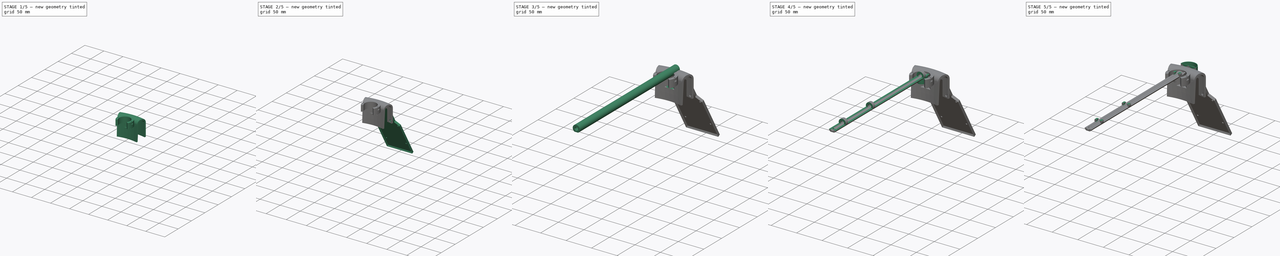
[diagram: build sequence overview — one tinted view per stage of 5, left to right]
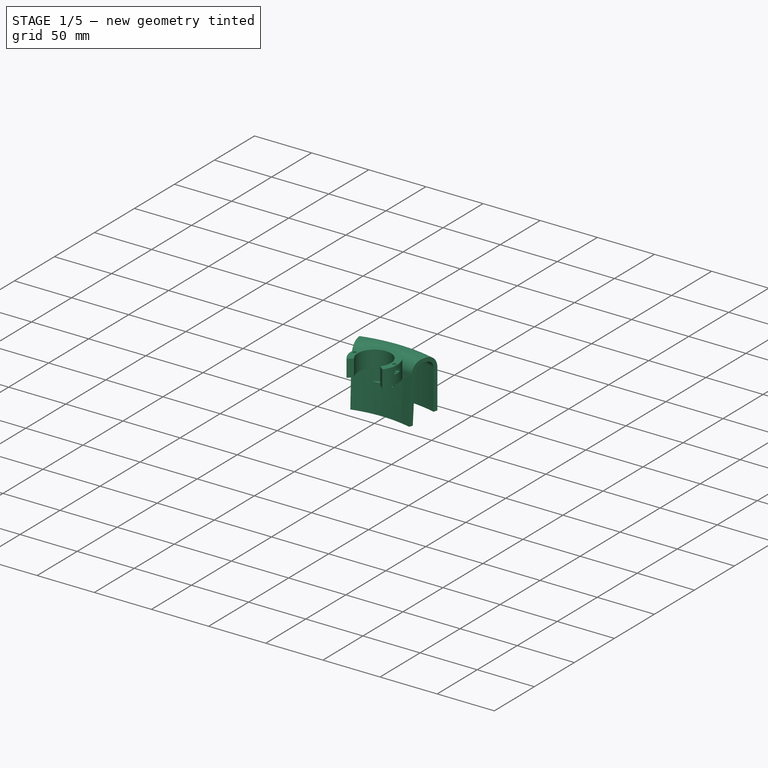
[diagram: stage 1 of 5 — iso view after this stage's code; geometry added in this stage tinted green]
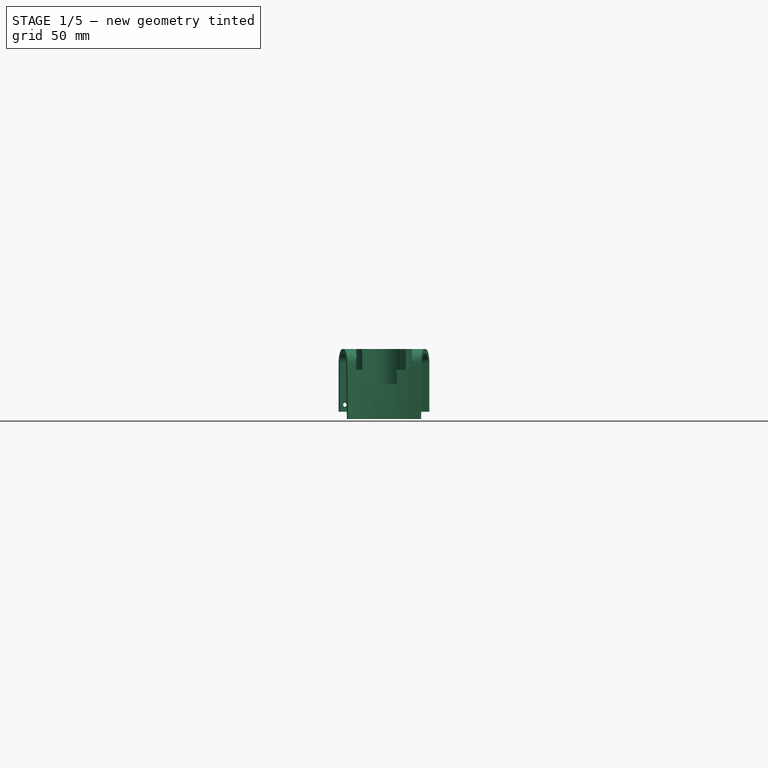
[diagram: stage 1 of 5 — front view after this stage's code; geometry added in this stage tinted green]
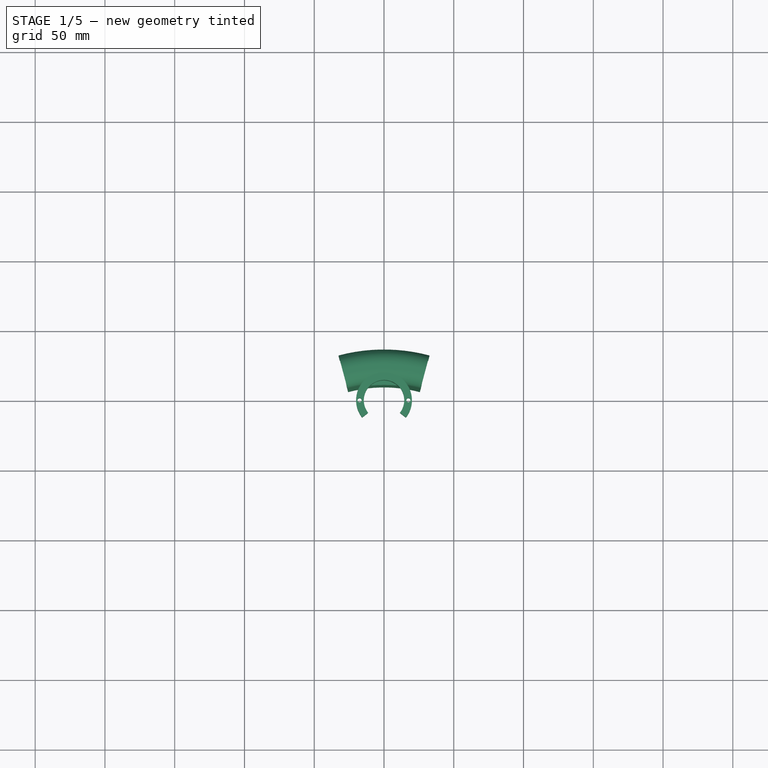
[diagram: stage 1 of 5 — top view after this stage's code; geometry added in this stage tinted green]
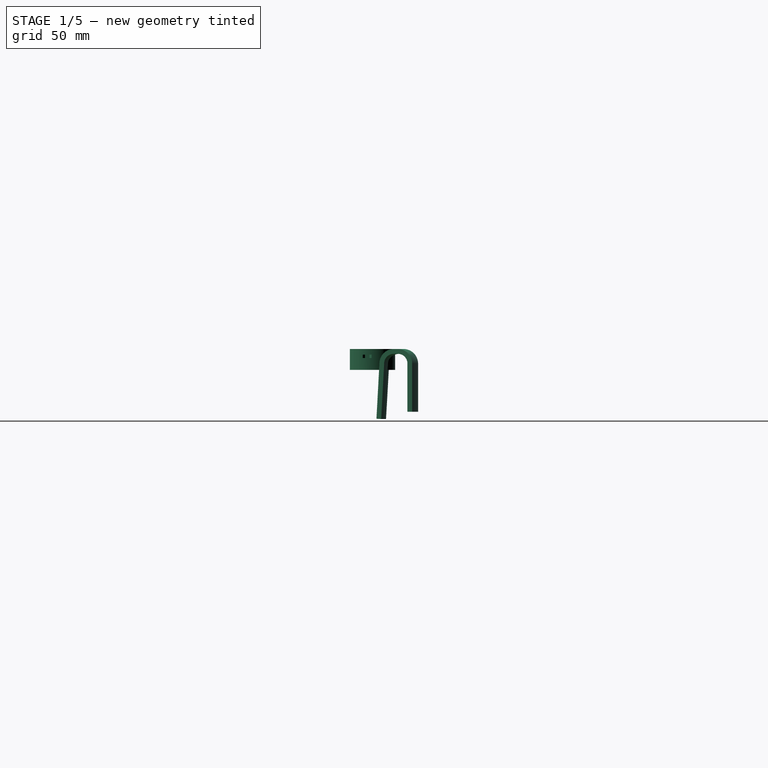
[diagram: stage 1 of 5 — right view after this stage's code; geometry added in this stage tinted green]
FCSTD DOCUMENT  (FreeCAD 0.20R29382 +95 (Git))
Label: arm
License: All rights reserved
LicenseURL: http://en.wikipedia.org/wiki/All_rights_reserved
objects: Sketcher::SketchObject×26, PartDesign::Pocket×15, PartDesign::Pad×7, PartDesign::Plane×5, PartDesign::Chamfer×4, PartDesign::Body×2, PartDesign::Revolution×1, PartDesign::Mirrored×1, PartDesign::Groove×1
note: 90 computed .brp shape members not serialized (recipe doc carries the construction recipe); baked Part::Feature solids carry a one-line shape summary decoded from their .brp

FEATURE [PartDesign::Body] Body  label="Arm"
  Group = -> [Sketch,Pad,Sketch001,Sketch017,Sketch018,Pocket001,Pocket002,DatumPlane,Sketch019,Pad001,Pocket,Sketch020,Pocket003,Sketch022,Pocket004,Sketch023,Pocket005,Sketch024,Pad002,Sketch025,Pocket006,Sketch026,Pocket007,DatumPlane001,Sketch014,Pad003,Sketch027,Pocket008,Chamfer]
  Origin = -> Origin
  Placement = pos=(0,0,20.4) rot=(0,0,1;3.14159rad)
  Tip = -> Chamfer
FEATURE [Sketcher::SketchObject] Sketch028  label="MotorCasing"
  FullyConstrained = true
  MapMode = 5
  Support = -> [XY_Plane001]
  expr: Constraints[16] = <<Constants>>.Constraints.ScrewSize
  sketch-geometry (8):
    g0: ArcOfCircle CenterX=0 CenterY=0 CenterZ=0 NormalX=0 NormalY=0 NormalZ=1 AngleXU=0 Radius=14.5 StartAngle=5.61356 EndAngle=10.0944
    g1: ArcOfCircle CenterX=0 CenterY=0 CenterZ=0 NormalX=0 NormalY=0 NormalZ=1 AngleXU=0 Radius=20 StartAngle=5.61356 EndAngle=10.0944
    g2: LineSegment StartX=-15.6811 StartY=-12.4138 StartZ=0 EndX=-11.3688 EndY=-9 EndZ=0
    g3: LineSegment StartX=15.6811 StartY=-12.4138 StartZ=0 EndX=11.3688 EndY=-9 EndZ=0
    g4: GeomPoint X=17.5 Y=0 Z=0
    g5: GeomPoint X=-17.5 Y=0 Z=0
    g6: Circle CenterX=-17.5 CenterY=0 CenterZ=0 NormalX=0 NormalY=0 NormalZ=1 AngleXU=0 Radius=1.5
    g7: Circle CenterX=17.5 CenterY=0 CenterZ=0 NormalX=0 NormalY=0 NormalZ=1 AngleXU=0 Radius=1.5
  constraints (19):
    c: Coincident(g0,g-1)
    c: Coincident(g1,g0)
    c: Coincident(g2,g1)
    c: Coincident(g2,g0)
    c: Coincident(g3,g1)
    c: Coincident(g3,g0)
    c: PointOnObject(g0,g2)
    c: PointOnObject(g0,g3)
    c: Horizontal(g0,g0)
    c: DistanceY(g0,g0) = 9
    c: PointOnObject(g4,g-1)
    c: Symmetric(g5,g4,g-2)
    c: DistanceX(g5,g4) = 35
    c: Coincident(g6,g5)
    c: Coincident(g7,g4)
    c: Equal(g7,g6)
    c: Diameter(g6) = 3
    c: Diameter(g0) = 29
    c: Diameter(g1) = 40
FEATURE [PartDesign::Pad] Pad004  label="MotorCasingPad"
  Direction = (0,0,1)
  Length = 15
  Length2 = 10
  Profile = -> Sketch028
  ReferenceAxis = -> Sketch028 [N_Axis]
  Reversed = true
  Type = 0
FEATURE [Sketcher::SketchObject] Sketch029  label="MotorNuts"
  AttachmentOffset = pos=(0,0,-4) rot=(0,0,1;0rad)
  ExternalGeometry = -> [Sketch028]
  FullyConstrained = true
  MapMode = 5
  Placement = pos=(0,0,-4) rot=(0,0,1;0rad)
  Support = -> [XY_Plane001]
  expr: Constraints[39] = <<Constants>>.Constraints.NutSize
  sketch-geometry (20):
    g0: LineSegment StartX=-17.5 StartY=3.17543 StartZ=0 EndX=-20.25 EndY=1.58771 EndZ=0
    g1: LineSegment StartX=-20.25 StartY=1.58771 StartZ=0 EndX=-20.25 EndY=-1.58771 EndZ=0
    g2: LineSegment StartX=-20.25 StartY=-1.58771 StartZ=0 EndX=-17.5 EndY=-3.17543 EndZ=0
    g3: LineSegment StartX=-17.5 StartY=-3.17543 StartZ=0 EndX=-14.75 EndY=-1.58771 EndZ=0
    g4: LineSegment StartX=-14.75 StartY=-1.58771 StartZ=0 EndX=-14.75 EndY=1.58771 EndZ=0
    g5: LineSegment StartX=-14.75 StartY=1.58771 StartZ=0 EndX=-17.5 EndY=3.17543 EndZ=0
    g6: Circle CenterX=-17.5 CenterY=0 CenterZ=0 NormalX=0 NormalY=0 NormalZ=1 AngleXU=0 Radius=3.17543
    g7: LineSegment StartX=17.5 StartY=3.17543 StartZ=0 EndX=14.75 EndY=1.58771 EndZ=0
    g8: LineSegment StartX=14.75 StartY=1.58771 StartZ=0 EndX=14.75 EndY=-1.58771 EndZ=0
    g9: LineSegment StartX=14.75 StartY=-1.58771 StartZ=0 EndX=17.5 EndY=-3.17543 EndZ=0
    g10: LineSegment StartX=17.5 StartY=-3.17543 StartZ=0 EndX=20.25 EndY=-1.58771 EndZ=0
    g11: LineSegment StartX=20.25 StartY=-1.58771 StartZ=0 EndX=20.25 EndY=1.58771 EndZ=0
    g12: LineSegment StartX=20.25 StartY=1.58771 StartZ=0 EndX=17.5 EndY=3.17543 EndZ=0
    g13: Circle CenterX=17.5 CenterY=0 CenterZ=0 NormalX=0 NormalY=0 NormalZ=1 AngleXU=0 Radius=3.17543
    g14: LineSegment StartX=-17.5 StartY=3.17543 StartZ=0 EndX=-27.5 EndY=3.17543 EndZ=0
    g15: LineSegment StartX=-27.5 StartY=3.17543 StartZ=0 EndX=-27.5 EndY=-3.17543 EndZ=0
    g16: LineSegment StartX=-27.5 StartY=-3.17543 StartZ=0 EndX=-17.5 EndY=-3.17543 EndZ=0
    g17: LineSegment StartX=17.5 StartY=3.17543 StartZ=0 EndX=27.5 EndY=3.17543 EndZ=0
    g18: LineSegment StartX=27.5 StartY=3.17543 StartZ=0 EndX=27.5 EndY=-3.17543 EndZ=0
    g19: LineSegment StartX=27.5 StartY=-3.17543 StartZ=0 EndX=17.5 EndY=-3.17543 EndZ=0
  constraints (48):
    c: Coincident(g0,g1)
    c: Coincident(g1,g2)
    c: Coincident(g2,g3)
    c: Coincident(g3,g4)
    c: Coincident(g4,g5)
    c: Coincident(g5,g0)
    c: Equal(g0, g1-g5) x5
    c: PointOnObject(g0,g6)
    c: PointOnObject(g1,g6)
    c: PointOnObject(g2,g6)
    c: PointOnObject(g3,g6)
    c: PointOnObject(g4,g6)
    c: PointOnObject(g5,g6)
    c: Coincident(g6,g-3)
    c: Coincident(g7,g8)
    c: Coincident(g8,g9)
    c: Coincident(g9,g10)
    c: Coincident(g10,g11)
    c: Coincident(g11,g12)
    c: Coincident(g12,g7)
    c: Equal(g7, g8-g12) x5
    c: PointOnObject(g7,g13)
    c: PointOnObject(g8,g13)
    c: PointOnObject(g9,g13)
    c: PointOnObject(g10,g13)
    c: PointOnObject(g11,g13)
    c: PointOnObject(g12,g13)
    c: Coincident(g13,g-4)
    c: Vertical(g4)
    c: Vertical(g8)
    c: Equal(g4,g8)
    c: DistanceX(g0,g4) = 5.5
    c: Coincident(g5,g14)
    c: Horizontal(g14)
    c: Coincident(g14,g15)
    c: Vertical(g15)
    c: Coincident(g15,g16)
    c: Coincident(g16,g3)
    c: Horizontal(g16)
    c: Coincident(g7,g17)
    c: Horizontal(g17)
    c: Coincident(g17,g18)
    c: Vertical(g18)
    c: Coincident(g18,g19)
    c: Coincident(g19,g9)
    c: Horizontal(g19)
    c: Equal(g17,g14)
    c: DistanceX(g14,g14) = 10
FEATURE [PartDesign::Pocket] Pocket009  label="MotorNutsPocket"
  BaseFeature = -> Pad004
  Direction = (0,0,-1)
  Length = 2.5
  Length2 = 5
  Profile = -> Sketch029
  ReferenceAxis = -> Sketch029 [N_Axis]
  Type = 0
  expr: Length = <<Constants>>.Constraints.NutHeight
FEATURE [Sketcher::SketchObject] Sketch030  label="Tweak"
  FullyConstrained = true
  Placement = pos=(0,0,0) rot=(0.57735,0.57735,0.57735;2.0944rad)
  sketch-geometry (13):
    g0: LineSegment StartX=9.98249 StartY=-50 StartZ=0 EndX=13.4807 EndY=-50.1956 EndZ=0
    g1: LineSegment StartX=13.4807 StartY=-50.1956 StartZ=0 EndX=15.7 EndY=-10.5 EndZ=0
    g2: ArcOfCircle CenterX=22.7 CenterY=-10.5 CenterZ=0 NormalX=0 NormalY=0 NormalZ=1 AngleXU=0 Radius=7 StartAngle=1.5708 EndAngle=3.14159
    g3: LineSegment StartX=22.7 StartY=-3.5 StartZ=0 EndX=25.9807 EndY=-3.5 EndZ=0
    g4: ArcOfCircle CenterX=25.9807 CenterY=-10.5 CenterZ=0 NormalX=0 NormalY=0 NormalZ=1 AngleXU=0 Radius=7 StartAngle=0 EndAngle=1.5708
    g5: LineSegment StartX=32.9807 StartY=-10.5 StartZ=0 EndX=32.9807 EndY=-45 EndZ=0
    g6: LineSegment StartX=32.9807 StartY=-45 StartZ=0 EndX=36.4807 EndY=-45 EndZ=0
    g7: LineSegment StartX=36.4807 StartY=-45 StartZ=0 EndX=36.4807 EndY=-10.5 EndZ=0
    g8: ArcOfCircle CenterX=25.9807 CenterY=-10.5 CenterZ=0 NormalX=0 NormalY=0 NormalZ=1 AngleXU=0 Radius=10.5 StartAngle=0 EndAngle=1.5708
    g9: LineSegment StartX=9.98249 StartY=-50 StartZ=0 EndX=12.2018 EndY=-10.3044 EndZ=0
    g10: ArcOfCircle CenterX=22.7 CenterY=-10.5 CenterZ=0 NormalX=0 NormalY=0 NormalZ=1 AngleXU=0 Radius=10.5 StartAngle=1.5708 EndAngle=3.12297
    g11: LineSegment StartX=22.7 StartY=0 StartZ=0 EndX=25.9807 EndY=0 EndZ=0
    g12: LineSegment StartX=15.7 StartY=-10.5 StartZ=0 EndX=12.2018 EndY=-10.3044 EndZ=0
  constraints (40):
    c: Coincident(g1,g0)
    c: Coincident(g2,g1)
    c: Coincident(g3,g2)
    c: Horizontal(g3)
    c: Coincident(g4,g3)
    c: Coincident(g5,g4)
    c: Vertical(g5)
    c: Coincident(g6,g5)
    c: Horizontal(g6)
    c: Coincident(g7,g6)
    c: Vertical(g7)
    c: Coincident(g8,g4)
    c: Coincident(g8,g7)
    c: PointOnObject(g8,g-1)
    c: Coincident(g9,g0)
    c: Coincident(g10,g2)
    c: Coincident(g10,g9)
    c: PointOnObject(g10,g-1)
    c: Coincident(g11,g10)
    c: Coincident(g11,g8)
    c: Horizontal(g1,g2)
    c: Horizontal(g2,g4)
    c: Horizontal(g4,g4)
    c: Horizontal(g4,g7)
    c: DistanceX(g-1,g1) = 15.7
    c: Vertical(g2,g2)
    c: Vertical(g2,g10)
    c: Vertical(g4,g3)
    c: Vertical(g3,g8)
    c: DistanceX(g0,g5) = 19.5
    c: DistanceY(g6,g-1) = 45
    c: DistanceY(g0,g-1) = 50
    c: DistanceY(g2,g2) = 7
    c: Coincident(g12,g1)
    c: Coincident(g12,g9)
    c: Angle(g12) = 3.08574
    c: Parallel(g9,g1)
    c: Perpendicular(g12,g1)
    c: Perpendicular(g0,g1)
    c: DistanceY(g3,g8) = 3.5
FEATURE [Sketcher::SketchObject] Sketch031  label="MotorHole"
  ExternalGeometry = -> [Sketch028]
  FullyConstrained = true
  MapMode = 5
  Support = -> [XY_Plane001]
  sketch-geometry (1):
    g0: Circle CenterX=0 CenterY=0 CenterZ=0 NormalX=0 NormalY=0 NormalZ=1 AngleXU=0 Radius=14.5
  constraints (2):
    c: Coincident(g0,g-3)
    c: PointOnObject(g-3,g0)
FEATURE [Sketcher::SketchObject] Sketch033  label="BucketAxisSketch"
  ExternalGeometry = -> [Sketch030]
  FullyConstrained = true
  MapMode = 5
  Placement = pos=(0,0,0) rot=(0.57735,0.57735,0.57735;2.0944rad)
  Support = -> [YZ_Plane001]
  sketch-geometry (2):
    g0: LineSegment StartX=-89.2997 StartY=0 StartZ=0 EndX=-89.2997 EndY=-100 EndZ=0
    g1: GeomPoint X=24.3403 Y=-3.5 Z=0
  constraints (5):
    c: PointOnObject(g0,g-1)
    c: Vertical(g0)
    c: DistanceY(g0,g0) = 100
    c: Symmetric(g-3,g-3,g1)
    c: DistanceX(g0,g1) = 113.64  'Radius'
FEATURE [PartDesign::Revolution] Revolution  label="TweakRevolution"
  Angle = 30
  Axis = (2e-16,-2e-16,-1)
  Base = (-1.98e-14,-89.2997,1.98e-14)
  BaseFeature = -> Pocket009
  Midplane = true
  Profile = -> Sketch030
  ReferenceAxis = -> Sketch033 [Edge1]
FEATURE [PartDesign::Pocket] Pocket010  label="MotorHolePocket"
  BaseFeature = -> Revolution
  Direction = (0,0,-1)
  Length = 25
  Length2 = 5
  Profile = -> Sketch031
  ReferenceAxis = -> Sketch031 [N_Axis]
  Type = 0
FEATURE [PartDesign::Plane] DatumPlane002  label="BucketTightenScrewPlane"
  AttachmentOffset = pos=(0,0,0) rot=(1,0,0;0.226893rad)
  Length = 192.213
  MapMode = 6
  Placement = pos=(-1.98e-14,-89.2997,1.98e-14) rot=(0.616308,-0.490234,0.616308;2.22999rad)
  ResizeMode = 0
  Support = -> [Sketch033,XZ_Plane001]
  Width = 134.262
FEATURE [Sketcher::SketchObject] Sketch034  label="BucketTightenScrew"
  AttachmentOffset = pos=(0,0,-113.64) rot=(0,0,1;0rad)
  ExternalGeometry = -> [Sketch030]
  FullyConstrained = true
  MapMode = 5
  Placement = pos=(-25.5634,21.4278,4.51e-14) rot=(0.616308,-0.490234,0.616308;2.22999rad)
  Support = -> [DatumPlane002]
  expr: .AttachmentOffset.Base.z = -<<BucketAxisSketch>>.Constraints.Radius
  expr: Constraints[2] = <<Constants>>.Constraints.ScrewSize
  sketch-geometry (1):
    g0: Circle CenterX=-40 CenterY=0 CenterZ=0 NormalX=0 NormalY=0 NormalZ=1 AngleXU=0 Radius=1.5
  constraints (3):
    c: PointOnObject(g0,g-1)
    c: DistanceX(g-3,g0) = 5
    c: Diameter(g0) = 3
FEATURE [PartDesign::Pocket] Pocket011  label="BucketTightenScrewPocket"
  BaseFeature = -> Pocket010
  Direction = (-0.224951,0.97437,2e-16)
  Length = 1000
  Length2 = 0
  Profile = -> Sketch034
  ReferenceAxis = -> Sketch034 [N_Axis]
  Type = 1
  expr: Length = 1000
FEATURE [Sketcher::SketchObject] Sketch035  label="BucketTightenNut"
  AttachmentOffset = pos=(0,0,-113.64) rot=(0,0,1;0rad)
  ExternalGeometry = -> [Sketch034]
  FullyConstrained = true
  MapMode = 5
  Placement = pos=(-25.5634,21.4278,4.51e-14) rot=(0.616308,-0.490234,0.616308;2.22999rad)
  Support = -> [DatumPlane002]
  expr: .AttachmentOffset.Base.z = -<<BucketAxisSketch>>.Constraints.Radius
  expr: Constraints[19] = <<Constants>>.Constraints.NutSize
  sketch-geometry (7):
    g0: LineSegment StartX=-36.8246 StartY=1.24e-14 StartZ=0 EndX=-38.4123 EndY=2.75 EndZ=0
    g1: LineSegment StartX=-38.4123 StartY=2.75 StartZ=0 EndX=-41.5877 EndY=2.75 EndZ=0
    g2: LineSegment StartX=-41.5877 StartY=2.75 StartZ=0 EndX=-43.1754 EndY=2.04e-14 EndZ=0
    g3: LineSegment StartX=-43.1754 StartY=2.04e-14 StartZ=0 EndX=-41.5877 EndY=-2.75 EndZ=0
    g4: LineSegment StartX=-41.5877 StartY=-2.75 StartZ=0 EndX=-38.4123 EndY=-2.75 EndZ=0
    g5: LineSegment StartX=-38.4123 StartY=-2.75 StartZ=0 EndX=-36.8246 EndY=1.24e-14 EndZ=0
    g6: Circle CenterX=-40 CenterY=3.6e-15 CenterZ=0 NormalX=0 NormalY=0 NormalZ=1 AngleXU=0 Radius=3.17543
  constraints (16):
    c: Coincident(g0,g1)
    c: Coincident(g1,g2)
    c: Coincident(g2,g3)
    c: Coincident(g3,g4)
    c: Coincident(g4,g5)
    c: Coincident(g5,g0)
    c: Equal(g0, g1-g5) x5
    c: PointOnObject(g0,g6)
    c: PointOnObject(g1,g6)
    c: PointOnObject(g2,g6)
    c: PointOnObject(g3,g6)
    c: PointOnObject(g4,g6)
    c: PointOnObject(g5,g6)
    c: Coincident(g6,g-3)
    c: Horizontal(g1)
    c: DistanceY(g4,g0) = 5.5
FEATURE [PartDesign::Pocket] Pocket012  label="BucketTightenNutPocket"
  BaseFeature = -> Pocket011
  Direction = (-0.224951,0.97437,2e-16)
  Length = 10.2
  Length2 = 5
  Profile = -> Sketch035
  ReferenceAxis = -> Sketch035 [N_Axis]
  Type = 0
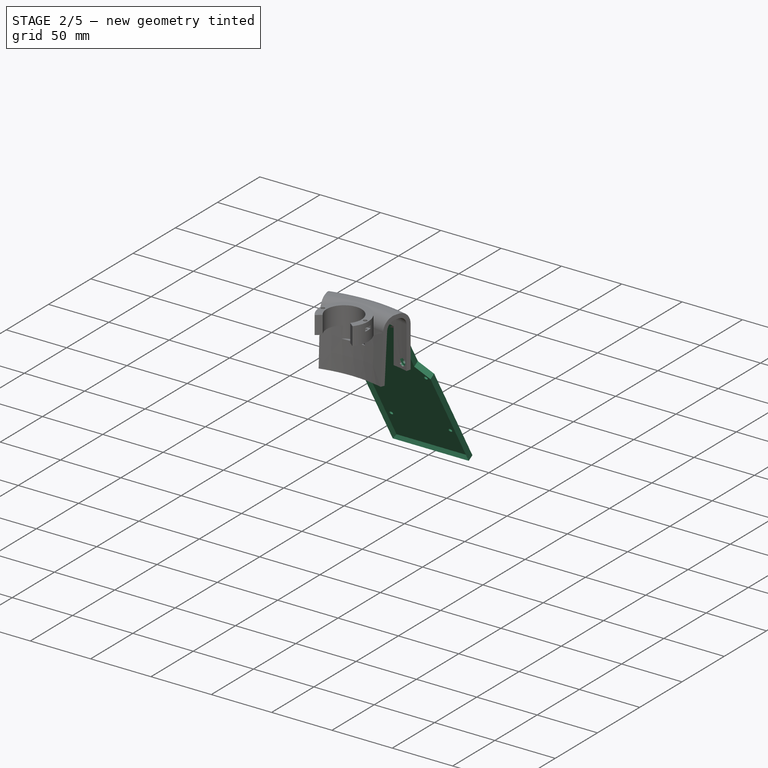
[diagram: stage 2 of 5 — iso view after this stage's code; geometry added in this stage tinted green]
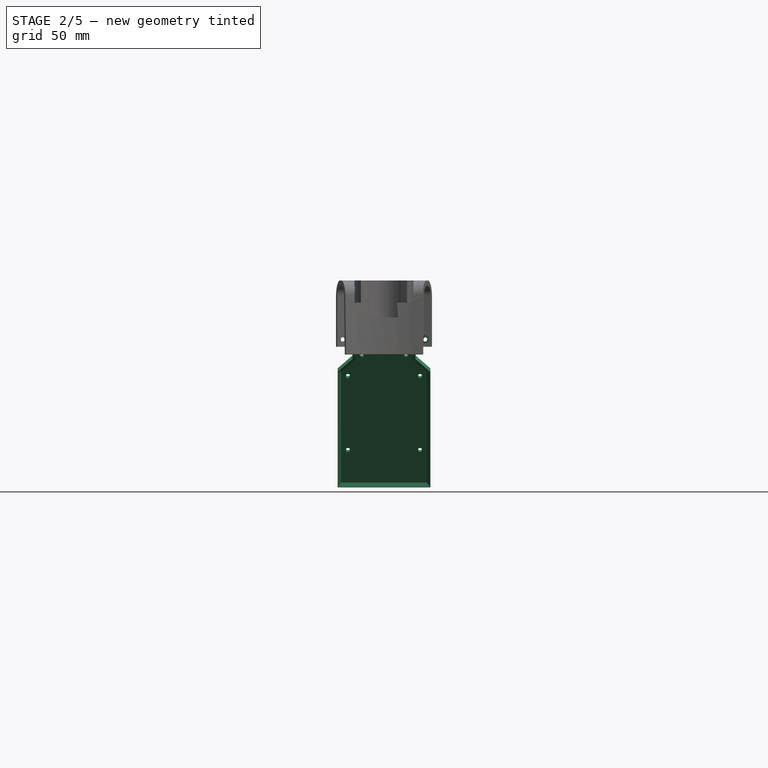
[diagram: stage 2 of 5 — front view after this stage's code; geometry added in this stage tinted green]
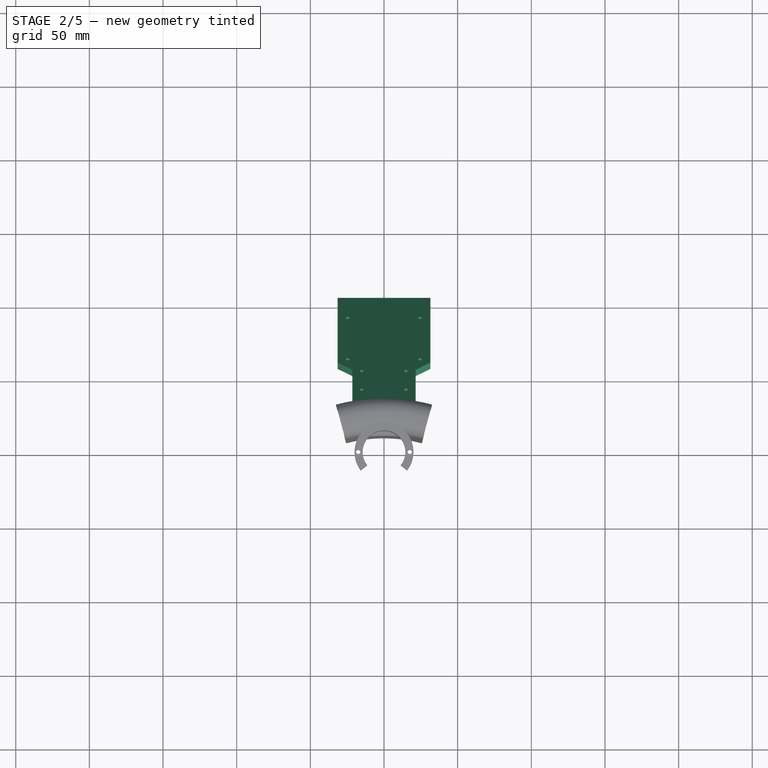
[diagram: stage 2 of 5 — top view after this stage's code; geometry added in this stage tinted green]
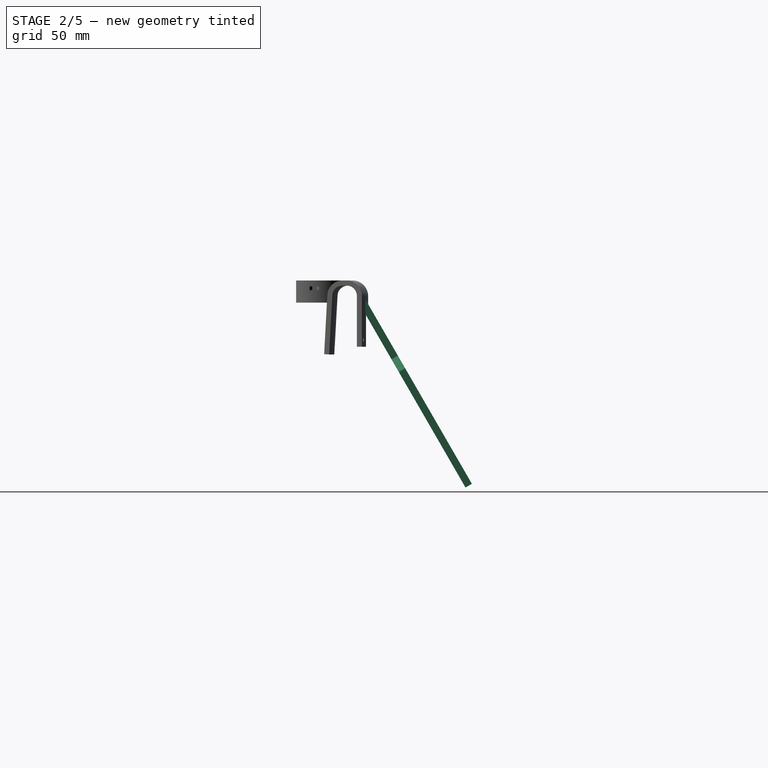
[diagram: stage 2 of 5 — right view after this stage's code; geometry added in this stage tinted green]
FEATURE [PartDesign::Mirrored] Mirrored  label="BucketTightenScrewPocketMirror"
  BaseFeature = -> Pocket012
  MirrorPlane = -> YZ_Plane001
  Originals = -> [Pocket011,Pocket012]
FEATURE [PartDesign::Plane] DatumPlane003  label="RoofPlane"
  AttachmentOffset = pos=(0,3.5,30) rot=(1,0,0;1.0472rad)
  Length = 90.1848
  MapMode = 6
  Placement = pos=(-2.62e-14,32.9807,-15) rot=(0,0.5,0.866025;3.14159rad)
  ResizeMode = 0
  Support = -> [Sketch030,XY_Plane001]
  Width = 266.522
FEATURE [Sketcher::SketchObject] Sketch006  label="Roof"
  AttachmentOffset = pos=(0,0,0) rot=(0,0,1;1.5708rad)
  FullyConstrained = true
  MapMode = 5
  Placement = pos=(-2.62e-14,32.9807,-15) rot=(0.447214,0.447214,0.774597;4.45971rad)
  Support = -> [DatumPlane003]
  expr: Constraints[56] = <<Constants>>.Constraints.ScrewSize
  sketch-geometry (24):
    g0: LineSegment StartX=-12 StartY=-19 StartZ=0 EndX=-44 EndY=-19 EndZ=0
    g1: LineSegment StartX=-44 StartY=-19 StartZ=0 EndX=-44 EndY=19 EndZ=0
    g2: LineSegment StartX=-44 StartY=19 StartZ=0 EndX=-12 EndY=19 EndZ=0
    g3: LineSegment StartX=-12 StartY=19 StartZ=0 EndX=-12 EndY=-19 EndZ=0
    g4: GeomPoint X=-15 Y=15 Z=0
    g5: GeomPoint X=-15 Y=-15 Z=0
    g6: GeomPoint X=-41 Y=-15 Z=0
    g7: GeomPoint X=-41 Y=15 Z=0
    g8: Circle CenterX=-41 CenterY=15 CenterZ=0 NormalX=0 NormalY=0 NormalZ=1 AngleXU=0 Radius=1.5
    g9: Circle CenterX=-15 CenterY=15 CenterZ=0 NormalX=0 NormalY=0 NormalZ=1 AngleXU=0 Radius=1.5
    g10: Circle CenterX=-41 CenterY=-15 CenterZ=0 NormalX=0 NormalY=0 NormalZ=1 AngleXU=0 Radius=1.5
    g11: Circle CenterX=-15 CenterY=-15 CenterZ=0 NormalX=0 NormalY=0 NormalZ=1 AngleXU=0 Radius=1.5
    g12: LineSegment StartX=-44 StartY=19 StartZ=0 EndX=-54 EndY=29 EndZ=0
    g13: LineSegment StartX=-54 StartY=29 StartZ=0 EndX=-141 EndY=29 EndZ=0
    g14: LineSegment StartX=-141 StartY=29 StartZ=0 EndX=-141 EndY=-29 EndZ=0
    g15: LineSegment StartX=-141 StartY=-29 StartZ=0 EndX=-54 EndY=-29 EndZ=0
    g16: LineSegment StartX=-54 StartY=-29 StartZ=0 EndX=-44 EndY=-19 EndZ=0
    g17: Circle CenterX=-57.5 CenterY=24.5 CenterZ=0 NormalX=0 NormalY=0 NormalZ=1 AngleXU=0 Radius=1.5
    g18: Circle CenterX=-57.5 CenterY=-24.5 CenterZ=0 NormalX=0 NormalY=0 NormalZ=1 AngleXU=0 Radius=1.5
    g19: Circle CenterX=-115.5 CenterY=24.5 CenterZ=0 NormalX=0 NormalY=0 NormalZ=1 AngleXU=0 Radius=1.5
    g20: Circle CenterX=-115.5 CenterY=-24.5 CenterZ=0 NormalX=0 NormalY=0 NormalZ=1 AngleXU=0 Radius=1.5
    g21: LineSegment StartX=-12 StartY=19 StartZ=0 EndX=0 EndY=19 EndZ=0
    g22: LineSegment StartX=0 StartY=19 StartZ=0 EndX=0 EndY=-19 EndZ=0
    g23: LineSegment StartX=0 StartY=-19 StartZ=0 EndX=-12 EndY=-19 EndZ=0
  constraints (61):
    c: Coincident(g0,g1)
    c: Coincident(g1,g2)
    c: Coincident(g2,g3)
    c: Coincident(g3,g0)
    c: Horizontal(g0)
    c: Horizontal(g2)
    c: Vertical(g1)
    c: Vertical(g3)
    c: DistanceX(g4,g2) = 3
    c: DistanceY(g4,g2) = 4
    c: Horizontal(g7,g4)
    c: DistanceX(g7,g4) = 26
    c: DistanceX(g1,g7) = 3
    c: DistanceY(g6,g7) = 30
    c: Vertical(g7,g6)
    c: DistanceY(g0,g6) = 4
    c: Horizontal(g6,g5)
    c: Vertical(g4,g5)
    c: DistanceY(g5,g-1) = 15
    c: Coincident(g8,g7)
    c: Coincident(g9,g4)
    c: Coincident(g10,g6)
    c: Coincident(g11,g5)
    c: Coincident(g1,g12)
    c: Coincident(g12,g13)
    c: Horizontal(g13)
    c: Coincident(g13,g14)
    c: Vertical(g14)
    c: Coincident(g14,g15)
    c: Horizontal(g15)
    c: Coincident(g15,g16)
    c: Coincident(g16,g0)
    c: Symmetric(g12,g15,g-1)
    c: DistanceY(g14,g13) = 58
    c: DistanceX(g13,g13) = 87
    c: Equal(g17,g18)
    c: Equal(g17,g19)
    c: Equal(g19,g20)
    c: Horizontal(g19,g17)
    c: DistanceY(g17,g12) = 4.5
    c: DistanceX(g17,g12) = 3.5
    c: Angle(g2,g12) = 2.35619
    c: DistanceY(g18,g17) = 49
    c: DistanceX(g20,g18) = 58
    c: Vertical(g18,g17)
    c: Vertical(g20,g19)
    c: Horizontal(g20,g18)
    c: Coincident(g2,g21)
    c: PointOnObject(g21,g-2)
    c: Horizontal(g21)
    c: Coincident(g21,g22)
    c: Vertical(g22)
    c: Coincident(g22,g23)
    c: Coincident(g23,g0)
    c: Horizontal(g23)
    c: DistanceX(g21,g21) = 12
    c: Diameter(g17) = 3
    c: Equal(g8,g9)
    c: Equal(g9,g11)
    c: Equal(g11,g10)
    c: Equal(g10,g17)
FEATURE [PartDesign::Pad] Pad005  label="RoofPad"
  BaseFeature = -> Mirrored
  Direction = (0,0.866025,0.5)
  Length = 2.5
  Length2 = 10
  Profile = -> Sketch006
  ReferenceAxis = -> Sketch006 [N_Axis]
  Type = 0
FEATURE [Sketcher::SketchObject] Sketch036  label="RoofPlate"
  ExternalGeometry = -> [Sketch006]
  FullyConstrained = true
  MapMode = 5
  Placement = pos=(-2.62e-14,32.9807,-15) rot=(0,0.5,0.866025;3.14159rad)
  Support = -> [DatumPlane003]
FEATURE [PartDesign::Pocket] Pocket013  label="ElectronicsPocket"
  BaseFeature = -> Pad005
  Direction = (0,-0.866025,-0.5)
  Length = 20
  Length2 = 5
  Profile = -> Sketch036
  ReferenceAxis = -> Sketch036 [N_Axis]
  Type = 0
FEATURE [Sketcher::SketchObject] Sketch037  label="RoofEdge"
  ExternalGeometry = -> [Sketch006]
  FullyConstrained = true
  MapMode = 5
  Placement = pos=(-2.62e-14,32.9807,-15) rot=(0,0.5,0.866025;3.14159rad)
  Support = -> [DatumPlane003]
  expr: Constraints[15] = .Constraints.Thickness
  expr: Constraints[16] = .Constraints.Thickness
  expr: Constraints[18] = .Constraints.Thickness
  expr: Constraints[19] = .Constraints.Thickness
  sketch-geometry (8):
    g0: LineSegment StartX=-21.5 StartY=2.5 StartZ=0 EndX=21.5 EndY=2.5 EndZ=0
    g1: LineSegment StartX=21.5 StartY=2.5 StartZ=0 EndX=21.5 EndY=-42.9645 EndZ=0
    g2: LineSegment StartX=21.5 StartY=-42.9645 StartZ=0 EndX=31.5 EndY=-52.9645 EndZ=0
    g3: LineSegment StartX=31.5 StartY=-52.9645 StartZ=0 EndX=31.5 EndY=-143.5 EndZ=0
    g4: LineSegment StartX=31.5 StartY=-143.5 StartZ=0 EndX=-31.5 EndY=-143.5 EndZ=0
    g5: LineSegment StartX=-31.5 StartY=-143.5 StartZ=0 EndX=-31.5 EndY=-52.9645 EndZ=0
    g6: LineSegment StartX=-31.5 StartY=-52.9645 StartZ=0 EndX=-21.5 EndY=-42.9645 EndZ=0
    g7: LineSegment StartX=-21.5 StartY=-42.9645 StartZ=0 EndX=-21.5 EndY=2.5 EndZ=0
  constraints (22):
    c: Horizontal(g0)
    c: Coincident(g0,g1)
    c: Vertical(g1)
    c: Coincident(g1,g2)
    c: Coincident(g2,g3)
    c: Vertical(g3)
    c: Coincident(g3,g4)
    c: Horizontal(g4)
    c: Coincident(g4,g5)
    c: Vertical(g5)
    c: Coincident(g5,g6)
    c: Coincident(g6,g7)
    c: Coincident(g7,g0)
    c: Vertical(g7)
    c: DistanceX(g-12,g0) = 2.5  'Thickness'
    c: DistanceY(g-12,g0) = 2.5
    c: DistanceX(g-10,g2) = 2.5
    c: Angle(g2,g-1) = 0.785398
    c: Distance(g-10,g2) = 2.5
    c: DistanceY(g3,g-9) = 2.5
    c: Symmetric(g6,g1,g-2)
    c: Symmetric(g5,g2,g-2)
FEATURE [PartDesign::Pad] Pad006  label="RoofEdgePad"
  BaseFeature = -> Pocket013
  Direction = (0,0.866025,0.5)
  Length = 2.5
  Length2 = 2.5
  Profile = -> Sketch037
  ReferenceAxis = -> Sketch037 [N_Axis]
  Reversed = true
  Type = 4
  expr: Length2 = <<RoofPad>>.Length
FEATURE [Sketcher::SketchObject] Sketch038  label="TweakInterior"
  ExternalGeometry = -> [Sketch030]
  FullyConstrained = true
  MapMode = 5
  Placement = pos=(0,0,0) rot=(0.57735,0.57735,0.57735;2.0944rad)
  Support = -> [YZ_Plane001]
  sketch-geometry (1):
    g0: LineSegment StartX=13.4807 StartY=-50.1956 StartZ=0 EndX=32.9807 EndY=-45 EndZ=0
  constraints (2):
    c: Coincident(g0,g-3)
    c: Coincident(g0,g-7)
FEATURE [PartDesign::Groove] Groove
  Angle = 360
  Axis = (2e-16,-2e-16,-1)
  Base = (-1.98e-14,-89.2997,1.98e-14)
  BaseFeature = -> Pad006
  Profile = -> Sketch038
  ReferenceAxis = -> Sketch033 [Edge1]
FEATURE [PartDesign::Chamfer] Chamfer001  label="RoofEdgeChamfer"
  Angle = 45
  Base = -> Groove [Edge195,Edge196,Edge194,Edge197,Edge193]
  BaseFeature = -> Groove
  ChamferType = 0
  FlipDirection = false
  Size = 2.49
  Size2 = 1
  SupportTransform = false
  UseAllEdges = false
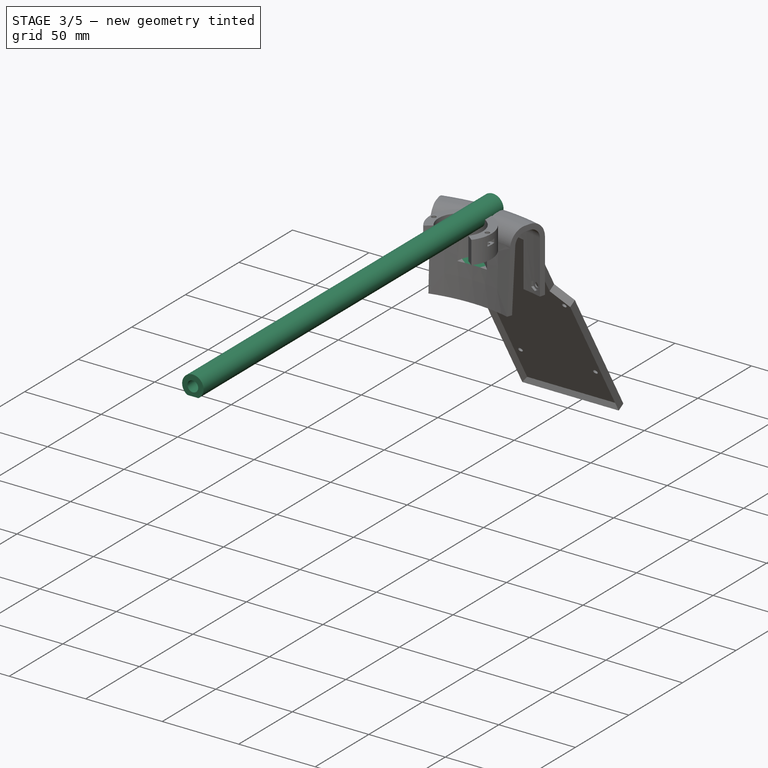
[diagram: stage 3 of 5 — iso view after this stage's code; geometry added in this stage tinted green]
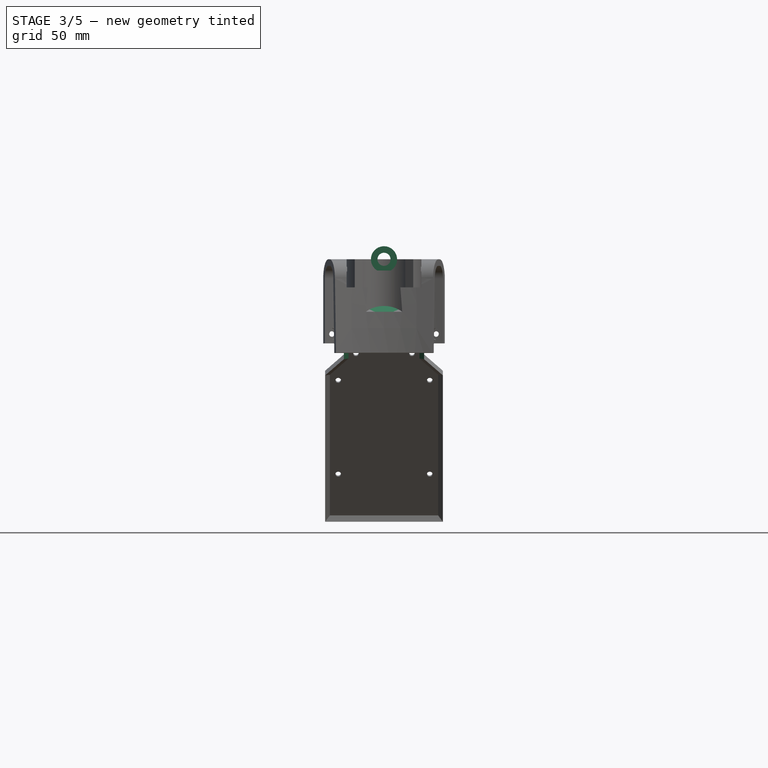
[diagram: stage 3 of 5 — front view after this stage's code; geometry added in this stage tinted green]
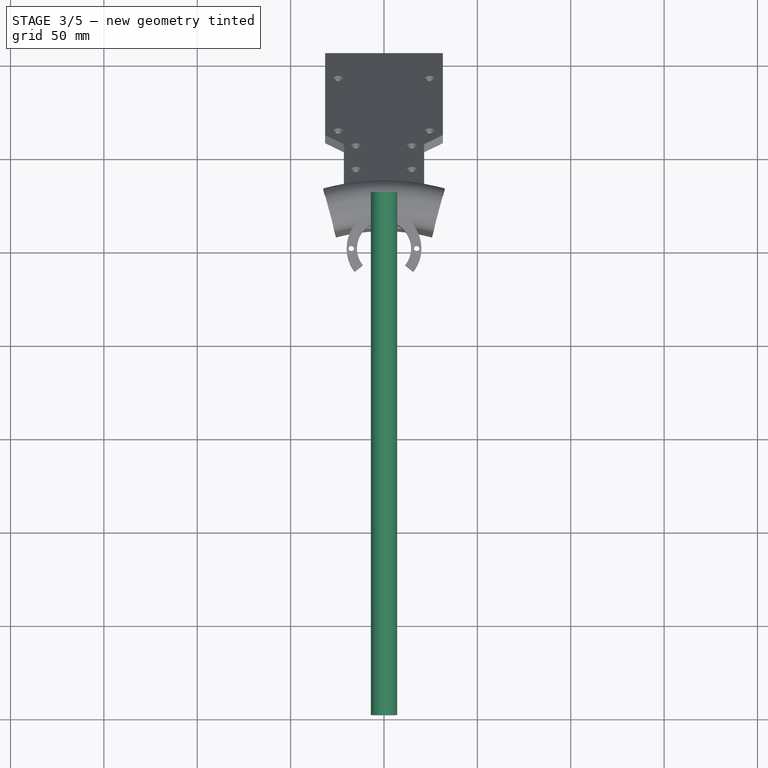
[diagram: stage 3 of 5 — top view after this stage's code; geometry added in this stage tinted green]
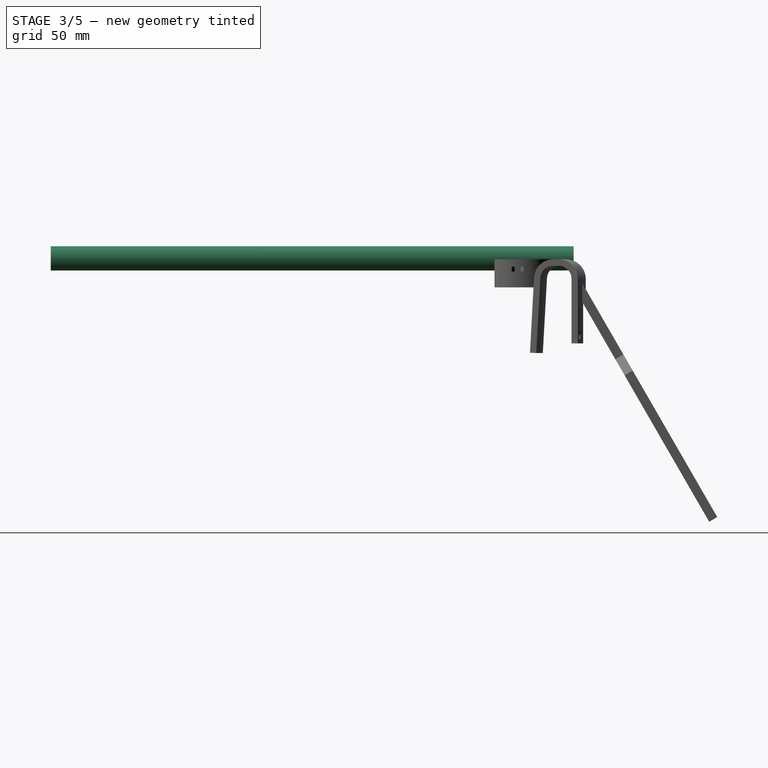
[diagram: stage 3 of 5 — right view after this stage's code; geometry added in this stage tinted green]
FEATURE [Sketcher::SketchObject] Sketch  label="ArmPipe"
  FullyConstrained = true
  Placement = pos=(0,0,0) rot=(1,0,0;1.5708rad)
  sketch-geometry (4):
    g0: Circle CenterX=0 CenterY=0 CenterZ=0 NormalX=0 NormalY=0 NormalZ=1 AngleXU=0 Radius=3.5
    g1: ArcOfCircle CenterX=0 CenterY=0 CenterZ=0 NormalX=0 NormalY=0 NormalZ=1 AngleXU=0 Radius=7 StartAngle=5.25349 EndAngle=10.4545
    g2: LineSegment StartX=-3.60555 StartY=-6 StartZ=0 EndX=0 EndY=-6 EndZ=0
    g3: LineSegment StartX=0 StartY=-6 StartZ=0 EndX=3.60555 EndY=-6 EndZ=0
  constraints (11):
    c: Coincident(g0,g-1)
    c: Radius(g0) = 3.5
    c: Coincident(g1,g0)
    c: Radius(g1) = 7
    c: DistanceY(g1,g0) = 6
    c: Horizontal(g1,g1)
    c: Coincident(g2,g3)
    c: Coincident(g3,g1)
    c: PointOnObject(g2,g-2)
    c: Horizontal(g3)
    c: Coincident(g2,g1)
FEATURE [Sketcher::SketchObject] Sketch001  label="HoseHolders"
  ExternalGeometry = -> [Sketch]
  FullyConstrained = true
  expr: Constraints[45] = <<ArmPipePad>>.Length2
  expr: Constraints[46] = <<ArmPipePad>>.Length
  sketch-geometry (16):
    g0: LineSegment StartX=-7 StartY=30 StartZ=0 EndX=7 EndY=30 EndZ=0
    g1: LineSegment StartX=7 StartY=30 StartZ=0 EndX=7 EndY=2 EndZ=0
    g2: LineSegment StartX=7 StartY=2 StartZ=0 EndX=-7 EndY=2 EndZ=0
    g3: LineSegment StartX=-7 StartY=2 StartZ=0 EndX=-7 EndY=30 EndZ=0
    g4: LineSegment StartX=-7 StartY=-4 StartZ=0 EndX=7 EndY=-4 EndZ=0
    g5: LineSegment StartX=7 StartY=-4 StartZ=0 EndX=7 EndY=-140 EndZ=0
    g6: LineSegment StartX=7 StartY=-140 StartZ=0 EndX=-7 EndY=-140 EndZ=0
    g7: LineSegment StartX=-7 StartY=-140 StartZ=0 EndX=-7 EndY=-4 EndZ=0
    g8: LineSegment StartX=-7 StartY=-146 StartZ=0 EndX=7 EndY=-146 EndZ=0
    g9: LineSegment StartX=7 StartY=-146 StartZ=0 EndX=7 EndY=-216 EndZ=0
    g10: LineSegment StartX=7 StartY=-216 StartZ=0 EndX=-7 EndY=-216 EndZ=0
    g11: LineSegment StartX=-7 StartY=-216 StartZ=0 EndX=-7 EndY=-146 EndZ=0
    g12: LineSegment StartX=-7 StartY=-250 StartZ=0 EndX=7 EndY=-250 EndZ=0
    g13: LineSegment StartX=7 StartY=-250 StartZ=0 EndX=7 EndY=-222 EndZ=0
    g14: LineSegment StartX=7 StartY=-222 StartZ=0 EndX=-7 EndY=-222 EndZ=0
    g15: LineSegment StartX=-7 StartY=-222 StartZ=0 EndX=-7 EndY=-250 EndZ=0
  constraints (48):
    c: Coincident(g0,g1)
    c: Coincident(g1,g2)
    c: Coincident(g2,g3)
    c: Coincident(g3,g0)
    c: Horizontal(g2)
    c: Vertical(g1)
    c: Vertical(g3)
    c: Coincident(g4,g5)
    c: Coincident(g5,g6)
    c: Coincident(g6,g7)
    c: Coincident(g7,g4)
    c: Horizontal(g4)
    c: Horizontal(g6)
    c: Vertical(g5)
    c: Vertical(g7)
    c: Coincident(g8,g9)
    c: Coincident(g9,g10)
    c: Coincident(g10,g11)
    c: Coincident(g11,g8)
    c: Horizontal(g8)
    c: Horizontal(g10)
    c: Vertical(g9)
    c: Vertical(g11)
    c: Coincident(g12,g13)
    c: Coincident(g13,g14)
    c: Coincident(g14,g15)
    c: Coincident(g15,g12)
    c: Horizontal(g12)
    c: Horizontal(g14)
    c: Vertical(g13)
    c: Vertical(g15)
    c: Vertical(g1,g4)
    c: Vertical(g4,g8)
    c: Vertical(g8,g13)
    c: Vertical(g2,g4)
    c: Vertical(g4,g8)
    c: Vertical(g8,g14)
    c: DistanceY(g1,g1) = 28
    c: DistanceY(g4,g1) = 6
    c: DistanceY(g8,g5) = 6
    c: DistanceY(g13,g9) = 6
    c: DistanceY(g13,g13) = 28
    c: DistanceY(g9,g9) = 70
    c: Vertical(g-3,g1)
    c: Vertical(g2,g-3)
    c: DistanceY(g-3,g0) = 30
    c: DistanceY(g12,g-3) = 250
    c: Horizontal(g0)
FEATURE [PartDesign::Pad] Pad  label="ArmPipePad"
  Direction = (0,-1,2e-16)
  Length = 250
  Length2 = 30
  Placement = pos=(0,0,0) rot=(1,0,0;1.5708rad)
  Profile = -> Sketch
  ReferenceAxis = -> Sketch [N_Axis]
  Type = 4
FEATURE [Sketcher::SketchObject] Sketch017  label="HoseEntrance"
  ExternalGeometry = -> [Sketch001]
  FullyConstrained = true
  MapMode = 5
  Support = -> [XY_Plane]
  sketch-geometry (1):
    g0: Circle CenterX=0 CenterY=20 CenterZ=0 NormalX=0 NormalY=0 NormalZ=1 AngleXU=0 Radius=3.75
  constraints (3):
    c: PointOnObject(g0,g-2)
    c: Diameter(g0) = 7.5
    c: DistanceY(g0,g-3) = 10  'ArmEndOffset'
FEATURE [Sketcher::SketchObject] Sketch018  label="HoseExit"
  ExternalGeometry = -> [Sketch017,Sketch001]
  FullyConstrained = true
  MapMode = 5
  Support = -> [XY_Plane]
  expr: Constraints[1] = <<HoseEntrance>>.Constraints.ArmEndOffset
  sketch-geometry (1):
    g0: Circle CenterX=0 CenterY=-240 CenterZ=0 NormalX=0 NormalY=0 NormalZ=1 AngleXU=0 Radius=3.75
  constraints (3):
    c: PointOnObject(g0,g-2)
    c: DistanceY(g-4,g0) = 10
    c: Equal(g0,g-3)
FEATURE [PartDesign::Pocket] Pocket001  label="HoseEntrancePocket"
  BaseFeature = -> Pad
  Direction = (0,1,-1)
  Length = 5
  Length2 = 5
  Placement = pos=(0,0,0) rot=(1,0,0;1.5708rad)
  Profile = -> Sketch017
  ReferenceAxis = -> Sketch017 [N_Axis]
  Type = 1
  UseCustomVector = true
FEATURE [PartDesign::Plane] DatumPlane004  label="RoofEdgeChamferTopPlane"
  AttachmentOffset = pos=(0,0,0) rot=(1,0,0;1.5708rad)
  Length = 90.7611
  MapMode = 6
  Placement = pos=(-19,38.9807,-25.3923) rot=(1,0,0;0.523599rad)
  ResizeMode = 0
  Support = -> [Sketch006,DatumPlane003]
  Width = 278.325
FEATURE [Sketcher::SketchObject] Sketch039  label="RoofEdgeChamferTop"
  ExternalGeometry = -> [Sketch006]
  FullyConstrained = true
  MapMode = 5
  Placement = pos=(-19,38.9807,-25.3923) rot=(1,0,0;0.523599rad)
  Support = -> [DatumPlane004]
  expr: Constraints[10] = <<RoofEdgePad>>.Length
  expr: Constraints[11] = <<RoofEdgeChamfer>>.Size
  sketch-geometry (4):
    g0: LineSegment StartX=0 StartY=-0.01 StartZ=0 EndX=-2.49 EndY=-2.5 EndZ=0
    g1: LineSegment StartX=-2.49 StartY=-2.5 StartZ=0 EndX=40.49 EndY=-2.5 EndZ=0
    g2: LineSegment StartX=40.49 StartY=-2.5 StartZ=0 EndX=38 EndY=-0.01 EndZ=0
    g3: LineSegment StartX=38 StartY=-0.01 StartZ=0 EndX=0 EndY=-0.01 EndZ=0
  constraints (12):
    c: Coincident(g0,g1)
    c: Horizontal(g1)
    c: Coincident(g1,g2)
    c: Coincident(g2,g3)
    c: Coincident(g3,g0)
    c: Horizontal(g3)
    c: Vertical(g2,g-3)
    c: Vertical(g0,g-1)
    c: Angle(g0,g3) = 2.35619
    c: Angle(g3,g2) = 2.35619
    c: DistanceY(g0,g-1) = 2.5
    c: DistanceY(g0,g0) = 2.49
FEATURE [PartDesign::Pocket] Pocket014  label="RoofEdgeChamferTopPocket"
  BaseFeature = -> Chamfer001
  Direction = (0,0.5,-0.866025)
  Length = 35
  Length2 = 3.5
  Profile = -> Sketch039
  ReferenceAxis = -> Sketch039 [N_Axis]
  Type = 4
FEATURE [PartDesign::Chamfer] Chamfer002  label="ScrewHeadsChamfer"
  Angle = 45
  Base = -> Pocket014 [Edge141,Edge54,Edge144,Edge148,Edge146,Edge143,Edge142,Edge145,Edge147,Edge53]
  BaseFeature = -> Pocket014
  ChamferType = 0
  FlipDirection = false
  Size = 1.3
  Size2 = 1
  SupportTransform = false
  UseAllEdges = false
  expr: Size = (<<Constants>>.Constraints.ScrewHeadSize - <<Constants>>.Constraints.ScrewSize) / 2
FEATURE [PartDesign::Chamfer] Chamfer003  label="MotorHoleChamfer"
  Angle = 45
  Base = -> Chamfer002 [Edge138]
  BaseFeature = -> Chamfer002
  ChamferType = 0
  FlipDirection = false
  Size = 3.11
  Size2 = 1
  SupportTransform = false
  UseAllEdges = false
FEATURE [PartDesign::Body] Body001  label="Base"
  Group = -> [Sketch028,Pad004,Sketch029,Pocket009,Sketch030,Sketch033,Revolution,Sketch031,Pocket010,DatumPlane002,Sketch034,Pocket011,Sketch035,Pocket012,Mirrored,DatumPlane003,Sketch006,Pad005,Sketch036,Pocket013,Sketch037,Pad006,Sketch038,Groove,Chamfer001,DatumPlane004,Sketch039,Pocket014,Chamfer002,Chamfer003]
  Origin = -> Origin001
  Tip = -> Chamfer003
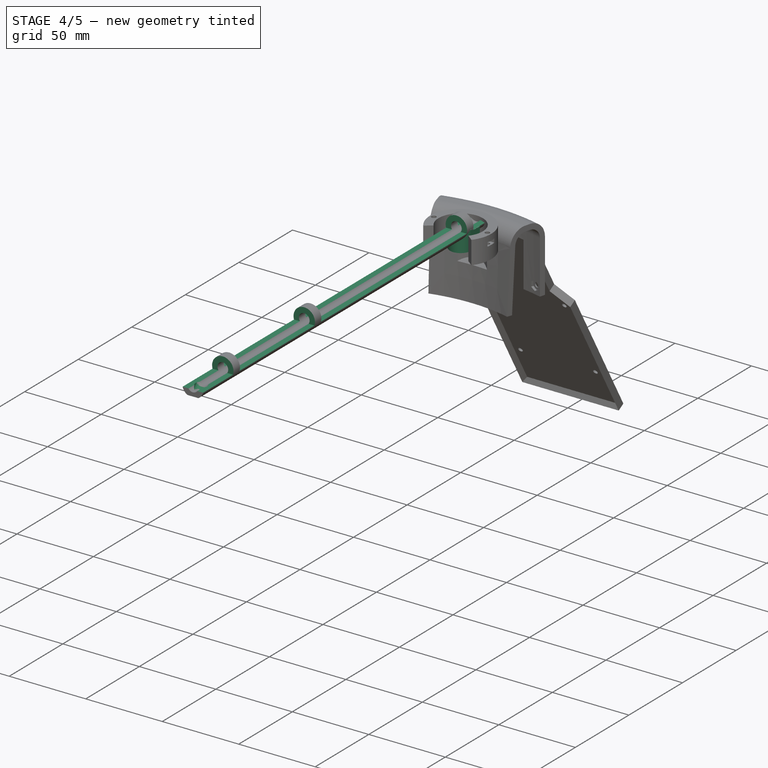
[diagram: stage 4 of 5 — iso view after this stage's code; geometry added in this stage tinted green]
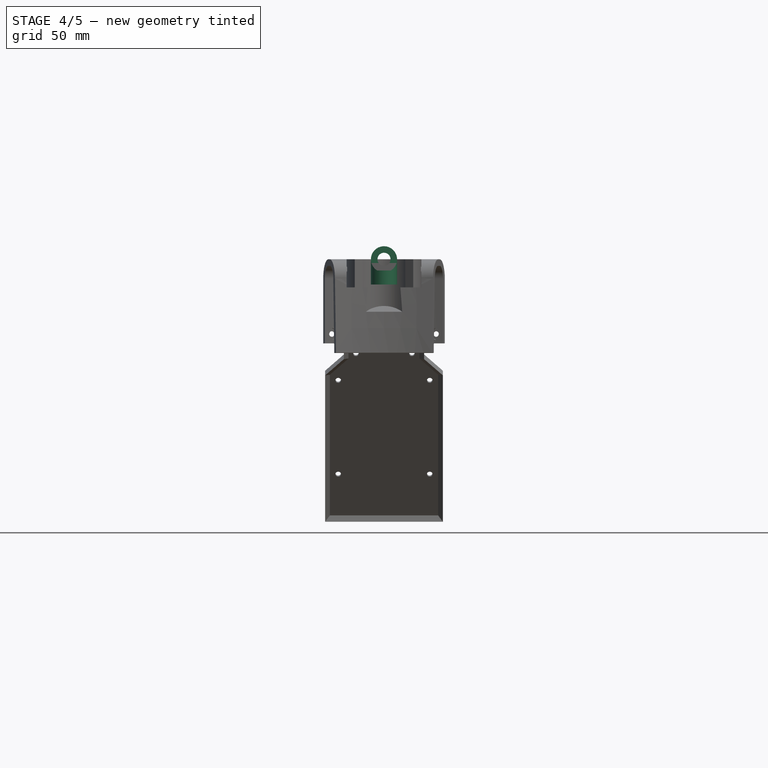
[diagram: stage 4 of 5 — front view after this stage's code; geometry added in this stage tinted green]
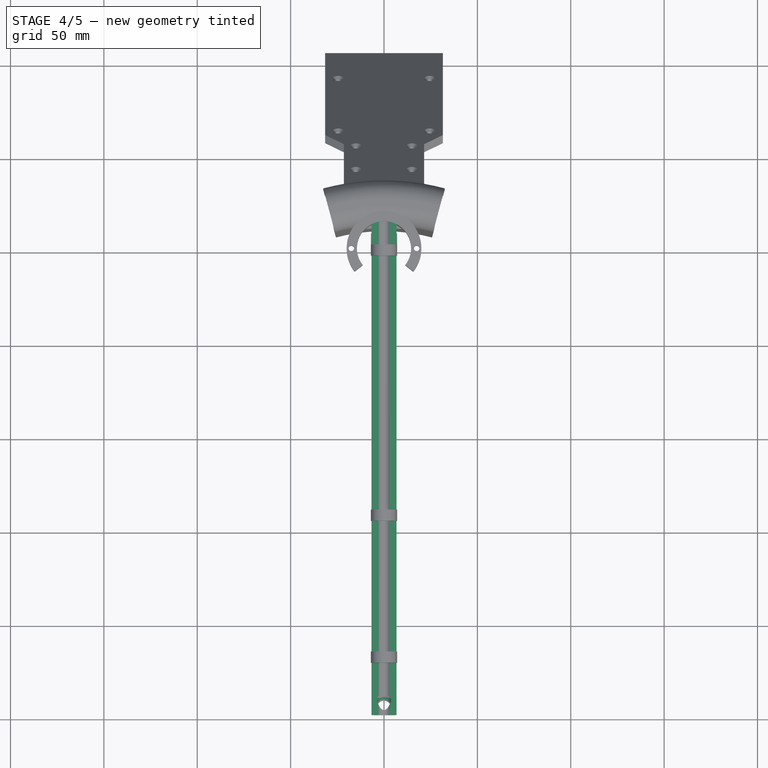
[diagram: stage 4 of 5 — top view after this stage's code; geometry added in this stage tinted green]
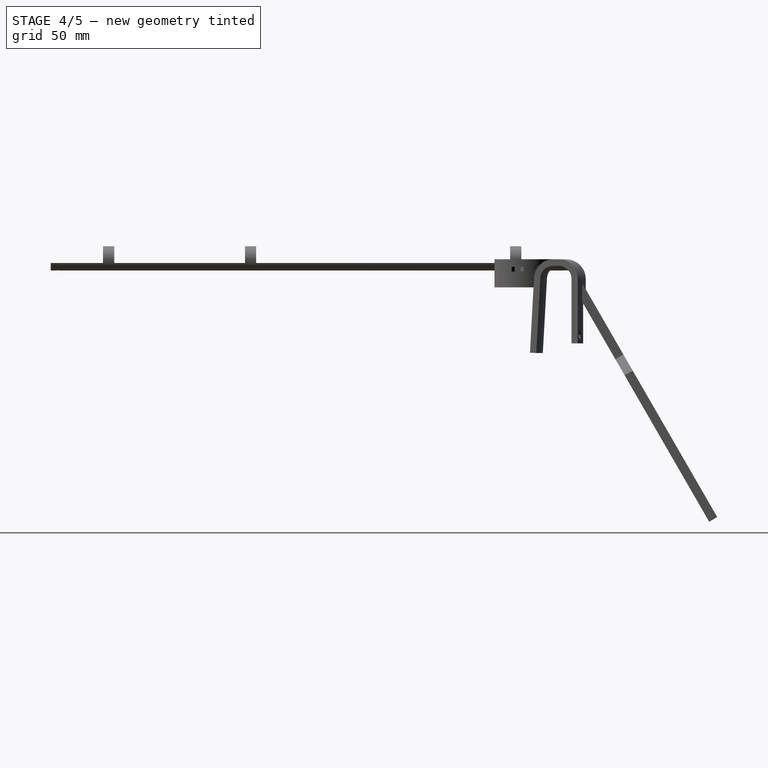
[diagram: stage 4 of 5 — right view after this stage's code; geometry added in this stage tinted green]
FEATURE [PartDesign::Pocket] Pocket002  label="HoseExitPocket"
  BaseFeature = -> Pocket001
  Direction = (0,-1,-1)
  Length = 5
  Length2 = 5
  Placement = pos=(0,0,0) rot=(1,0,0;1.5708rad)
  Profile = -> Sketch018
  ReferenceAxis = -> Sketch018 [N_Axis]
  Type = 1
  UseCustomVector = true
FEATURE [PartDesign::Plane] DatumPlane  label="ArmBottomPlane"
  Length = 74.2899
  MapMode = 6
  Placement = pos=(0,0,-6) rot=(0,0,1;3.14159rad)
  ResizeMode = 0
  Support = -> [Sketch,XY_Plane]
  Width = 319.29
FEATURE [Sketcher::SketchObject] Sketch019  label="MotorMount"
  ExternalGeometry = -> [Sketch001]
  FullyConstrained = true
  MapMode = 5
  Placement = pos=(0,0,-6) rot=(0,0,1;3.14159rad)
  Support = -> [DatumPlane]
  sketch-geometry (5):
    g0: Circle CenterX=0 CenterY=0 CenterZ=0 NormalX=0 NormalY=0 NormalZ=1 AngleXU=0 Radius=2.5
    g1: LineSegment StartX=-7 StartY=0 StartZ=0 EndX=-7 EndY=-8 EndZ=0
    g2: LineSegment StartX=-7 StartY=-8 StartZ=0 EndX=7 EndY=-8 EndZ=0
    g3: LineSegment StartX=7 StartY=-8 StartZ=0 EndX=7 EndY=0 EndZ=0
    g4: ArcOfCircle CenterX=0 CenterY=0 CenterZ=0 NormalX=0 NormalY=0 NormalZ=1 AngleXU=0 Radius=7 StartAngle=0 EndAngle=3.14159
  constraints (15):
    c: Coincident(g0,g-1)
    c: PointOnObject(g1,g-1)
    c: Vertical(g1)
    c: Coincident(g1,g2)
    c: Horizontal(g2)
    c: Coincident(g2,g3)
    c: PointOnObject(g3,g-1)
    c: Vertical(g3)
    c: PointOnObject(g-3,g1)
    c: PointOnObject(g-3,g3)
    c: Coincident(g4,g0)
    c: Coincident(g4,g1)
    c: PointOnObject(g4,g-1)
    c: Diameter(g0) = 5
    c: DistanceY(g1,g1) = 8
FEATURE [PartDesign::Pad] Pad001  label="MotorMountPad"
  BaseFeature = -> Pocket002
  Direction = (0,0,1)
  Length = 5
  Length2 = 7.5
  Placement = pos=(0,0,0) rot=(1,0,0;1.5708rad)
  Profile = -> Sketch019
  ReferenceAxis = -> Sketch019 [N_Axis]
  Type = 4
FEATURE [PartDesign::Pocket] Pocket  label="HoseHoldersPocket"
  BaseFeature = -> Pad001
  Direction = (0,0,-1)
  Length = 2
  Length2 = 15
  Placement = pos=(0,0,0) rot=(1,0,0;1.5708rad)
  Profile = -> Sketch001
  ReferenceAxis = -> Sketch001 [N_Axis]
  Type = 4
FEATURE [Sketcher::SketchObject] Sketch020  label="HoseHole"
  ExternalGeometry = -> [Sketch]
  FullyConstrained = true
  MapMode = 5
  Placement = pos=(0,0,0) rot=(1,0,0;1.5708rad)
  Support = -> [XZ_Plane]
FEATURE [PartDesign::Pocket] Pocket003  label="HoseHolePocket"
  BaseFeature = -> Pocket
  Direction = (0,1,2e-16)
  Length = 5
  Length2 = 5
  Midplane = true
  Placement = pos=(0,0,0) rot=(1,0,0;1.5708rad)
  Profile = -> Sketch020
  ReferenceAxis = -> Sketch020 [N_Axis]
  Type = 1
FEATURE [Sketcher::SketchObject] Sketch021  label="Constants"
  FullyConstrained = true
  expr: .Constraints.ScrewHeadSize = 5.6
  expr: Constraints[24] = .Constraints.FixedReserve
  sketch-geometry (20):
    g0: LineSegment StartX=97.5 StartY=-5 StartZ=0 EndX=97.5 EndY=5 EndZ=0
    g1: LineSegment StartX=97.5 StartY=5 StartZ=0 EndX=102.5 EndY=5 EndZ=0
    g2: LineSegment StartX=102.5 StartY=5 StartZ=0 EndX=102.5 EndY=-5 EndZ=0
    g3: LineSegment StartX=102.5 StartY=-5 StartZ=0 EndX=97.5 EndY=-5 EndZ=0
    g4: GeomPoint X=100 Y=0 Z=0
    g5: LineSegment StartX=97.35 StartY=-5.15 StartZ=0 EndX=97.35 EndY=5.15 EndZ=0
    g6: LineSegment StartX=97.35 StartY=5.15 StartZ=0 EndX=102.65 EndY=5.15 EndZ=0
    g7: LineSegment StartX=102.65 StartY=5.15 StartZ=0 EndX=102.65 EndY=-5.15 EndZ=0
    g8: LineSegment StartX=102.65 StartY=-5.15 StartZ=0 EndX=97.35 EndY=-5.15 EndZ=0
    g9: GeomPoint X=100 Y=0 Z=0
    g10: Circle CenterX=110 CenterY=0 CenterZ=0 NormalX=0 NormalY=0 NormalZ=1 AngleXU=0 Radius=1.5
    g11: LineSegment StartX=110 StartY=3.17543 StartZ=0 EndX=107.25 EndY=1.58771 EndZ=0
    g12: LineSegment StartX=107.25 StartY=1.58771 StartZ=0 EndX=107.25 EndY=-1.58771 EndZ=0
    g13: LineSegment StartX=107.25 StartY=-1.58771 StartZ=0 EndX=110 EndY=-3.17543 EndZ=0
    g14: LineSegment StartX=110 StartY=-3.17543 StartZ=0 EndX=112.75 EndY=-1.58771 EndZ=0
    g15: LineSegment StartX=112.75 StartY=-1.58771 StartZ=0 EndX=112.75 EndY=1.58771 EndZ=0
    g16: LineSegment StartX=112.75 StartY=1.58771 StartZ=0 EndX=110 EndY=3.17543 EndZ=0
    g17: Circle CenterX=110 CenterY=0 CenterZ=0 NormalX=0 NormalY=0 NormalZ=1 AngleXU=0 Radius=3.17543
    g18: LineSegment StartX=112.75 StartY=1.58771 StartZ=0 EndX=115.25 EndY=1.58771 EndZ=0
    g19: Circle CenterX=110 CenterY=0 CenterZ=0 NormalX=0 NormalY=0 NormalZ=1 AngleXU=0 Radius=2.8
  constraints (49):
    c: Coincident(g0,g1)
    c: Coincident(g1,g2)
    c: Coincident(g2,g3)
    c: Coincident(g3,g0)
    c: Horizontal(g1)
    c: Horizontal(g3)
    c: Vertical(g0)
    c: Vertical(g2)
    c: Symmetric(g1,g0,g4)
    c: PointOnObject(g4,g-1)
    c: DistanceX(g-1,g4) = 100
    c: DistanceX(g1,g1) = 5
    c: DistanceY(g2,g2) = 10
    c: Coincident(g5,g6)
    c: Coincident(g6,g7)
    c: Coincident(g7,g8)
    c: Coincident(g8,g5)
    c: Horizontal(g6)
    c: Horizontal(g8)
    c: Vertical(g5)
    c: Vertical(g7)
    c: Symmetric(g6,g5,g9)
    c: Coincident(g9,g4)
    c: DistanceX(g2,g7) = 0.15  'FixedReserve'
    c: DistanceY(g7,g2) = 0.15
    c: PointOnObject(g10,g-1)
    c: Diameter(g10) = 3  'ScrewSize'
    c: DistanceX(g4,g10) = 10
    c: Coincident(g11,g12)
    c: Coincident(g12,g13)
    c: Coincident(g13,g14)
    c: Coincident(g14,g15)
    c: Coincident(g15,g16)
    c: Coincident(g16,g11)
    c: Equal(g11, g12-g16) x5
    c: PointOnObject(g11,g17)
    c: PointOnObject(g12,g17)
    c: PointOnObject(g13,g17)
    c: PointOnObject(g14,g17)
    c: PointOnObject(g15,g17)
    c: PointOnObject(g16,g17)
    c: Coincident(g17,g10)
    c: Vertical(g15)
    c: DistanceX(g11,g15) = 5.5  'NutSize'
    c: Coincident(g18,g15)
    c: Horizontal(g18)
    c: DistanceX(g18,g18) = 2.5  'NutHeight'
    c: Coincident(g19,g10)
    c: Diameter(g19) = 5.6  'ScrewHeadSize'
FEATURE [Sketcher::SketchObject] Sketch022  label="Screw"
  FullyConstrained = true
  MapMode = 5
  Placement = pos=(0,0,0) rot=(1,0,0;1.5708rad)
  Support = -> [XZ_Plane]
  expr: Constraints[2] = <<Constants>>.Constraints.ScrewSize
  sketch-geometry (1):
    g0: Circle CenterX=0 CenterY=-9 CenterZ=0 NormalX=0 NormalY=0 NormalZ=1 AngleXU=0 Radius=1.5
  constraints (3):
    c: PointOnObject(g0,g-2)
    c: DistanceY(g0,g-1) = 9
    c: Diameter(g0) = 3
FEATURE [PartDesign::Pocket] Pocket004  label="ScrewPocket"
  BaseFeature = -> Pocket003
  Direction = (0,1,2e-16)
  Length = 5
  Length2 = 5
  Placement = pos=(0,0,0) rot=(1,0,0;1.5708rad)
  Profile = -> Sketch022
  ReferenceAxis = -> Sketch022 [N_Axis]
  Type = 1
FEATURE [Sketcher::SketchObject] Sketch023  label="Nut"
  AttachmentOffset = pos=(0,0,-3) rot=(0,0,1;0rad)
  ExternalGeometry = -> [Sketch022]
  FullyConstrained = true
  MapMode = 5
  Placement = pos=(0,3,7e-16) rot=(1,0,0;1.5708rad)
  Support = -> [XZ_Plane]
  expr: Constraints[19] = <<Constants>>.Constraints.NutSize
  sketch-geometry (10):
    g0: LineSegment StartX=0 StartY=-5.82457 StartZ=0 EndX=-2.75 EndY=-7.41229 EndZ=0
    g1: LineSegment StartX=-2.75 StartY=-7.41229 StartZ=0 EndX=-2.75 EndY=-10.5877 EndZ=0
    g2: LineSegment StartX=-2.75 StartY=-10.5877 StartZ=0 EndX=-7.4203e-12 EndY=-12.1754 EndZ=0
    g3: LineSegment StartX=-7.4203e-12 StartY=-12.1754 StartZ=0 EndX=2.75 EndY=-10.5877 EndZ=0
    g4: LineSegment StartX=2.75 StartY=-10.5877 StartZ=0 EndX=2.75 EndY=-7.41229 EndZ=0
    g5: LineSegment StartX=2.75 StartY=-7.41229 StartZ=0 EndX=0 EndY=-5.82457 EndZ=0
    g6: Circle CenterX=0 CenterY=-9 CenterZ=0 NormalX=0 NormalY=0 NormalZ=1 AngleXU=0 Radius=3.17543
    g7: LineSegment StartX=-2.75 StartY=-10.5877 StartZ=0 EndX=-2.75 EndY=-20.5877 EndZ=0
    g8: LineSegment StartX=-2.75 StartY=-20.5877 StartZ=0 EndX=2.75 EndY=-20.5877 EndZ=0
    g9: LineSegment StartX=2.75 StartY=-20.5877 StartZ=0 EndX=2.75 EndY=-10.5877 EndZ=0
  constraints (24):
    c: Coincident(g0,g1)
    c: Coincident(g1,g2)
    c: Coincident(g2,g3)
    c: Coincident(g3,g4)
    c: Coincident(g4,g5)
    c: Coincident(g5,g0)
    c: Equal(g0, g1-g5) x5
    c: PointOnObject(g0,g6)
    c: PointOnObject(g1,g6)
    c: PointOnObject(g2,g6)
    c: PointOnObject(g3,g6)
    c: PointOnObject(g4,g6)
    c: PointOnObject(g5,g6)
    c: Coincident(g6,g-3)
    c: PointOnObject(g5,g-2)
    c: DistanceX(g0,g4) = 5.5
    c: Coincident(g1,g7)
    c: Vertical(g7)
    c: Coincident(g7,g8)
    c: Horizontal(g8)
    c: Coincident(g8,g9)
    c: Coincident(g9,g4)
    c: Vertical(g9)
    c: DistanceY(g9,g9) = 10
FEATURE [PartDesign::Pocket] Pocket005  label="NutPocket"
  BaseFeature = -> Pocket004
  Direction = (0,1,2e-16)
  Length = 2.5
  Length2 = 5
  Placement = pos=(0,0,0) rot=(1,0,0;1.5708rad)
  Profile = -> Sketch023
  ReferenceAxis = -> Sketch023 [N_Axis]
  Type = 0
  expr: Length = <<Constants>>.Constraints.NutHeight
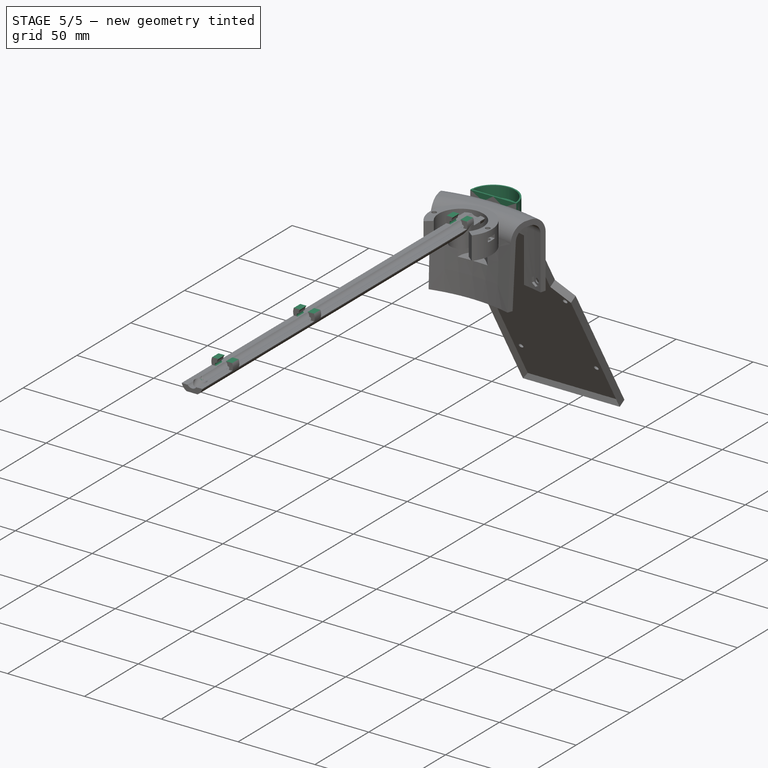
[diagram: stage 5 of 5 — iso view after this stage's code; geometry added in this stage tinted green]
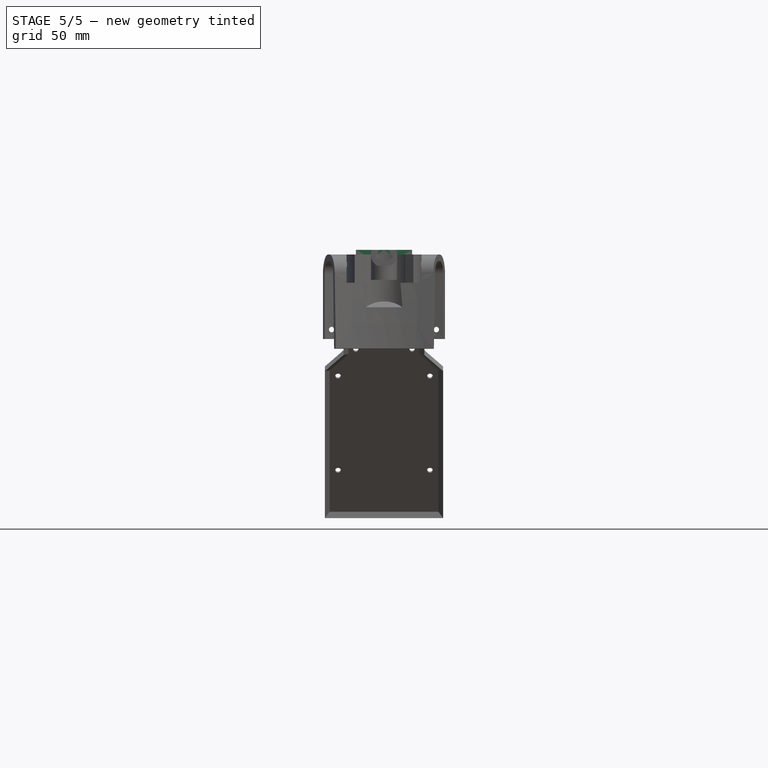
[diagram: stage 5 of 5 — front view after this stage's code; geometry added in this stage tinted green]
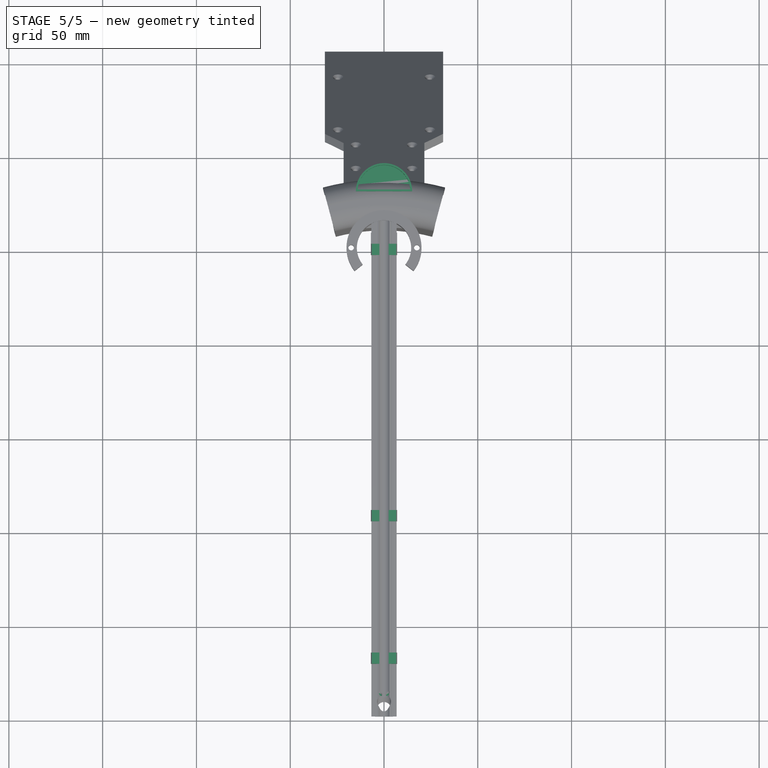
[diagram: stage 5 of 5 — top view after this stage's code; geometry added in this stage tinted green]
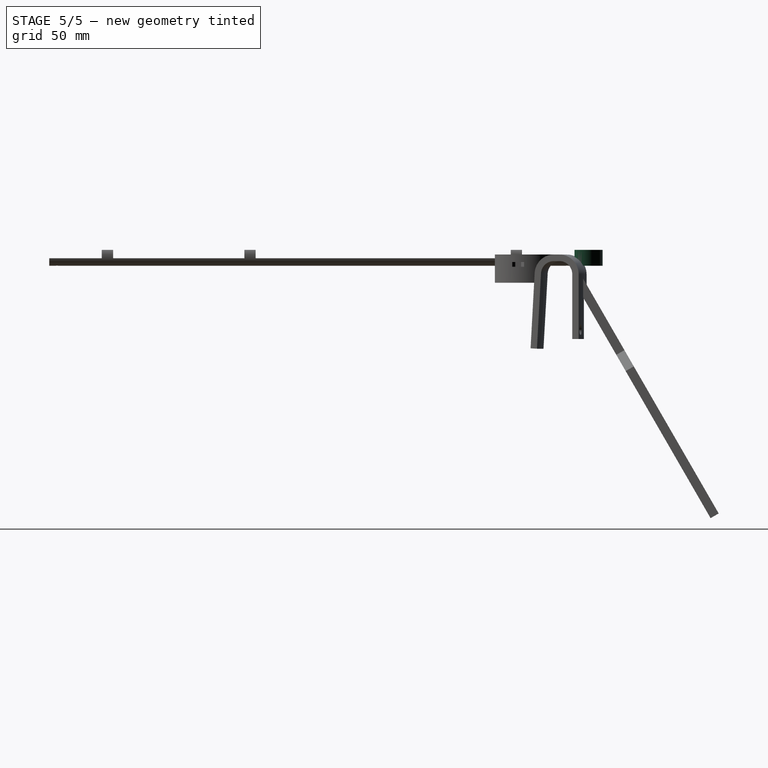
[diagram: stage 5 of 5 — right view after this stage's code; geometry added in this stage tinted green]
FEATURE [Sketcher::SketchObject] Sketch024  label="MotorRodTighteners"
  AttachmentOffset = pos=(0,0,-6) rot=(0,0,1;0rad)
  ExternalGeometry = -> [Sketch019]
  FullyConstrained = true
  MapMode = 5
  Placement = pos=(0,0,-6) rot=(0,0,1;0rad)
  Support = -> [XY_Plane]
  sketch-geometry (8):
    g0: LineSegment StartX=-2.5 StartY=2.5 StartZ=0 EndX=2.5 EndY=2.5 EndZ=0
    g1: LineSegment StartX=2.5 StartY=2.5 StartZ=0 EndX=2.5 EndY=1.5 EndZ=0
    g2: LineSegment StartX=2.5 StartY=1.5 StartZ=0 EndX=-2.5 EndY=1.5 EndZ=0
    g3: LineSegment StartX=-2.5 StartY=1.5 StartZ=0 EndX=-2.5 EndY=2.5 EndZ=0
    g4: LineSegment StartX=-2.5 StartY=-2.5 StartZ=0 EndX=2.5 EndY=-2.5 EndZ=0
    g5: LineSegment StartX=2.5 StartY=-2.5 StartZ=0 EndX=2.5 EndY=-1.5 EndZ=0
    g6: LineSegment StartX=2.5 StartY=-1.5 StartZ=0 EndX=-2.5 EndY=-1.5 EndZ=0
    g7: LineSegment StartX=-2.5 StartY=-1.5 StartZ=0 EndX=-2.5 EndY=-2.5 EndZ=0
  constraints (23):
    c: Coincident(g0,g1)
    c: Coincident(g1,g2)
    c: Coincident(g2,g3)
    c: Coincident(g3,g0)
    c: Horizontal(g0)
    c: Horizontal(g2)
    c: Vertical(g1)
    c: Vertical(g3)
    c: Coincident(g4,g5)
    c: Coincident(g5,g6)
    c: Coincident(g6,g7)
    c: Coincident(g7,g4)
    c: Horizontal(g4)
    c: Horizontal(g6)
    c: Vertical(g5)
    c: Vertical(g7)
    c: Tangent(g-3,g4)
    c: Tangent(g0,g-3)
    c: Tangent(g1,g-3)
    c: Vertical(g5,g1)
    c: Tangent(g3,g-3)
    c: Symmetric(g6,g1,g-3)
    c: DistanceY(g5,g1) = 3
FEATURE [PartDesign::Pad] Pad002  label="MotorRodTightenersPad"
  BaseFeature = -> Pocket005
  Direction = (0,0,1)
  Length = 6
  Length2 = 10
  Placement = pos=(0,0,0) rot=(1,0,0;1.5708rad)
  Profile = -> Sketch024
  ReferenceAxis = -> Sketch024 [N_Axis]
  Reversed = true
  Type = 0
FEATURE [Sketcher::SketchObject] Sketch025  label="HoseInsertion"
  ExternalGeometry = -> [Sketch]
  FullyConstrained = true
  MapMode = 5
  Placement = pos=(0,0,0) rot=(1,0,0;1.5708rad)
  Support = -> [XZ_Plane]
  sketch-geometry (7):
    g0: Circle CenterX=-3.65 CenterY=-1.1 CenterZ=0 NormalX=0 NormalY=0 NormalZ=1 AngleXU=0 Radius=1
    g1: Circle CenterX=3.65 CenterY=-1.1 CenterZ=0 NormalX=0 NormalY=0 NormalZ=1 AngleXU=0 Radius=1
    g2: LineSegment StartX=-7 StartY=7 StartZ=0 EndX=7 EndY=7 EndZ=0
    g3: LineSegment StartX=7 StartY=7 StartZ=0 EndX=7 EndY=2.5 EndZ=0
    g4: LineSegment StartX=-7 StartY=2.5 StartZ=0 EndX=-7 EndY=7 EndZ=0
    g5: LineSegment StartX=-7 StartY=2.5 StartZ=0 EndX=0 EndY=2.5 EndZ=0
    g6: LineSegment StartX=0 StartY=2.5 StartZ=0 EndX=7 EndY=2.5 EndZ=0
  constraints (20):
    c: Diameter(g0) = 2
    c: Equal(g1,g0)
    c: Symmetric(g1,g0,g-2)
    c: DistanceX(g0,g-3) = 3.65
    c: DistanceY(g0,g-3) = 1.1
    c: Coincident(g2,g3)
    c: Coincident(g4,g2)
    c: Horizontal(g2)
    c: Vertical(g3)
    c: Vertical(g4)
    c: Tangent(g3,g-3)
    c: Tangent(g2,g-3)
    c: Tangent(g4,g-3)
    c: DistanceY(g-3,g4) = 2.5
    c: Coincident(g4,g5)
    c: PointOnObject(g5,g-2)
    c: Horizontal(g5)
    c: Coincident(g5,g6)
    c: Coincident(g6,g3)
    c: Horizontal(g6)
FEATURE [PartDesign::Pocket] Pocket006  label="HoseInsertionPocket"
  BaseFeature = -> Pad002
  Direction = (0,1,2e-16)
  Length = 5
  Length2 = 5
  Midplane = true
  Placement = pos=(0,0,0) rot=(1,0,0;1.5708rad)
  Profile = -> Sketch025
  ReferenceAxis = -> Sketch025 [N_Axis]
  Type = 1
FEATURE [Sketcher::SketchObject] Sketch026  label="FlowSensor"
  ExternalGeometry = -> [Sketch001]
  FullyConstrained = true
  MapMode = 5
  Support = -> [XY_Plane]
  sketch-geometry (2):
    g0: Circle CenterX=-2 CenterY=-235 CenterZ=0 NormalX=0 NormalY=0 NormalZ=1 AngleXU=0 Radius=1
    g1: Circle CenterX=2 CenterY=-235 CenterZ=0 NormalX=0 NormalY=0 NormalZ=1 AngleXU=0 Radius=1
  constraints (5):
    c: Diameter(g0) = 2
    c: Symmetric(g0,g1,g-2)
    c: Equal(g0,g1)
    c: DistanceX(g0,g-1) = 2
    c: DistanceY(g-3,g0) = 15
FEATURE [PartDesign::Pocket] Pocket007  label="FlowSensorPocket"
  BaseFeature = -> Pocket006
  Direction = (0,-1,-1)
  Length = 5
  Length2 = 5
  Placement = pos=(0,0,0) rot=(1,0,0;1.5708rad)
  Profile = -> Sketch026
  ReferenceAxis = -> Sketch026 [N_Axis]
  Type = 1
  UseCustomVector = true
FEATURE [PartDesign::Plane] DatumPlane001  label="ArmTopPlane"
  Length = 73.6643
  MapMode = 6
  Placement = pos=(0,-6e-16,2.5) rot=(0,0,1;3.14159rad)
  ResizeMode = 0
  Support = -> [Sketch025,XY_Plane]
  Width = 303.664
FEATURE [Sketcher::SketchObject] Sketch014  label="AntiWeightHolder"
  ExternalGeometry = -> [Sketch001]
  FullyConstrained = true
  MapMode = 5
  Placement = pos=(0,-6e-16,2.5) rot=(0,0,1;3.14159rad)
  Support = -> [DatumPlane001]
  sketch-geometry (4):
    g0: GeomPoint X=0 Y=-30 Z=0
    g1: ArcOfCircle CenterX=0 CenterY=-30 CenterZ=0 NormalX=0 NormalY=0 NormalZ=1 AngleXU=0 Radius=15 StartAngle=3.14159 EndAngle=6.28319
    g2: LineSegment StartX=-15 StartY=-30 StartZ=0 EndX=0 EndY=-30 EndZ=0
    g3: LineSegment StartX=0 StartY=-30 StartZ=0 EndX=15 EndY=-30 EndZ=0
  constraints (10):
    c: DistanceX(g1,g1) = 30
    c: PointOnObject(g1,g-3)
    c: Coincident(g1,g0)
    c: Coincident(g1,g2)
    c: Coincident(g2,g3)
    c: Coincident(g3,g1)
    c: Horizontal(g3)
    c: PointOnObject(g2,g-2)
    c: Coincident(g1,g2)
    c: Horizontal(g2)
FEATURE [PartDesign::Pad] Pad003  label="AntiWeightyHolderPad"
  BaseFeature = -> Pocket007
  Direction = (0,0,1)
  Length = 8.5
  Length2 = 10
  Placement = pos=(0,0,0) rot=(1,0,0;1.5708rad)
  Profile = -> Sketch014
  ReferenceAxis = -> Sketch014 [N_Axis]
  Reversed = true
  Type = 0
  expr: Length = <<ArmTopPlane>>.Placement.Base.z - <<ArmBottomPlane>>.Placement.Base.z
FEATURE [Sketcher::SketchObject] Sketch027  label="AntiWeightHolderInterior"
  ExternalGeometry = -> [Sketch014]
  FullyConstrained = true
  MapMode = 5
  Placement = pos=(0,-6e-16,2.5) rot=(0,0,1;3.14159rad)
  Support = -> [DatumPlane001]
  sketch-geometry (2):
    g0: ArcOfCircle CenterX=0 CenterY=-30 CenterZ=0 NormalX=0 NormalY=0 NormalZ=1 AngleXU=0 Radius=14.0357 StartAngle=3.2129 EndAngle=6.21188
    g1: LineSegment StartX=-14 StartY=-31 StartZ=0 EndX=14 EndY=-31 EndZ=0
  constraints (6):
    c: Coincident(g0,g-3)
    c: Coincident(g1,g0)
    c: Coincident(g1,g0)
    c: Horizontal(g1)
    c: DistanceX(g0,g-3) = 1
    c: DistanceY(g0,g-3) = 1
FEATURE [PartDesign::Pocket] Pocket008  label="AntiWeightHolderInteriorPocket"
  BaseFeature = -> Pad003
  Direction = (0,0,-1)
  Length = 7
  Length2 = 5
  Placement = pos=(0,0,0) rot=(1,0,0;1.5708rad)
  Profile = -> Sketch027
  ReferenceAxis = -> Sketch027 [N_Axis]
  Type = 0
  expr: Length = <<AntiWeightyHolderPad>>.Length - 1.5mm
FEATURE [PartDesign::Chamfer] Chamfer
  Angle = 45
  Base = -> Pocket008 [Edge27]
  BaseFeature = -> Pocket008
  ChamferType = 0
  FlipDirection = false
  Placement = pos=(0,0,0) rot=(1,0,0;1.5708rad)
  Size = 1.3
  Size2 = 1
  SupportTransform = false
  UseAllEdges = false
  expr: Size = (<<Constants>>.Constraints.ScrewHeadSize - <<Constants>>.Constraints.ScrewSize) / 2
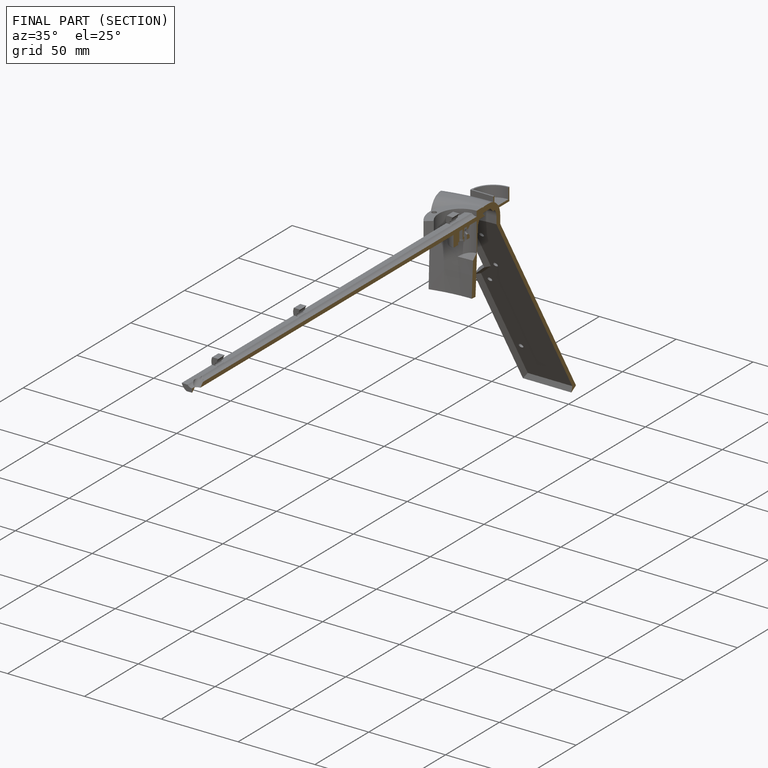
[diagram: finished part — half-section view (interior)]
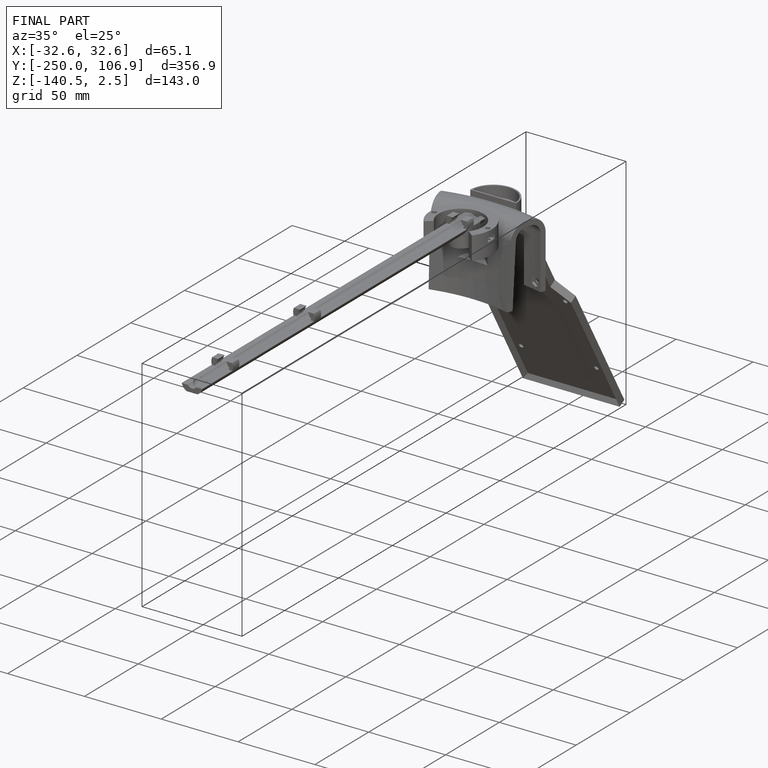
[diagram: finished part — iso view with bounding-box wireframe]
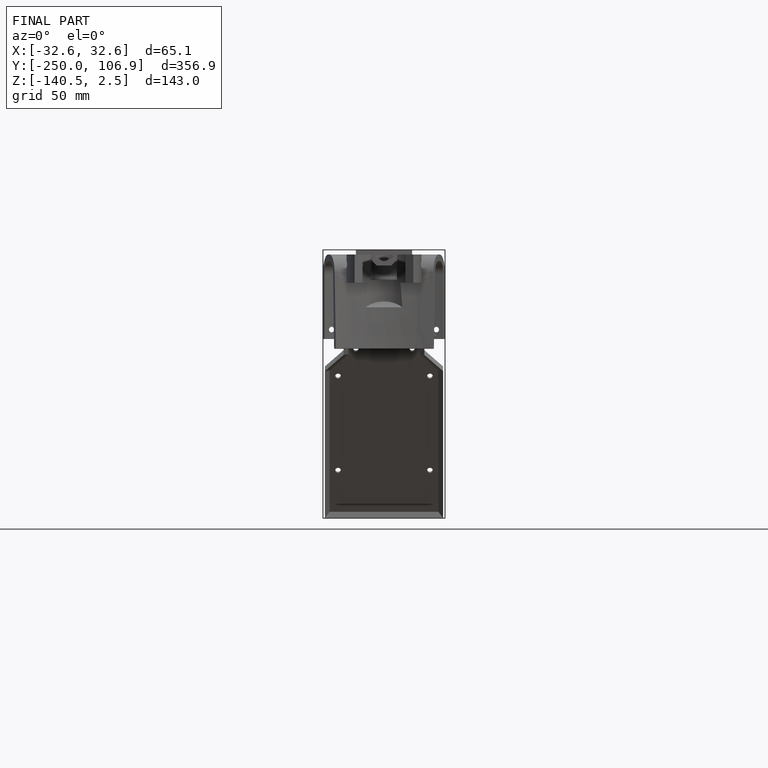
[diagram: finished part — front view with bounding-box wireframe]
